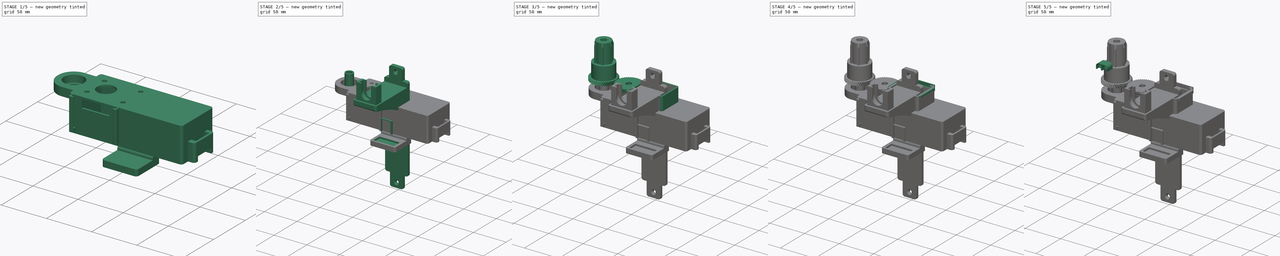
[diagram: build sequence overview — one tinted view per stage of 5, left to right]
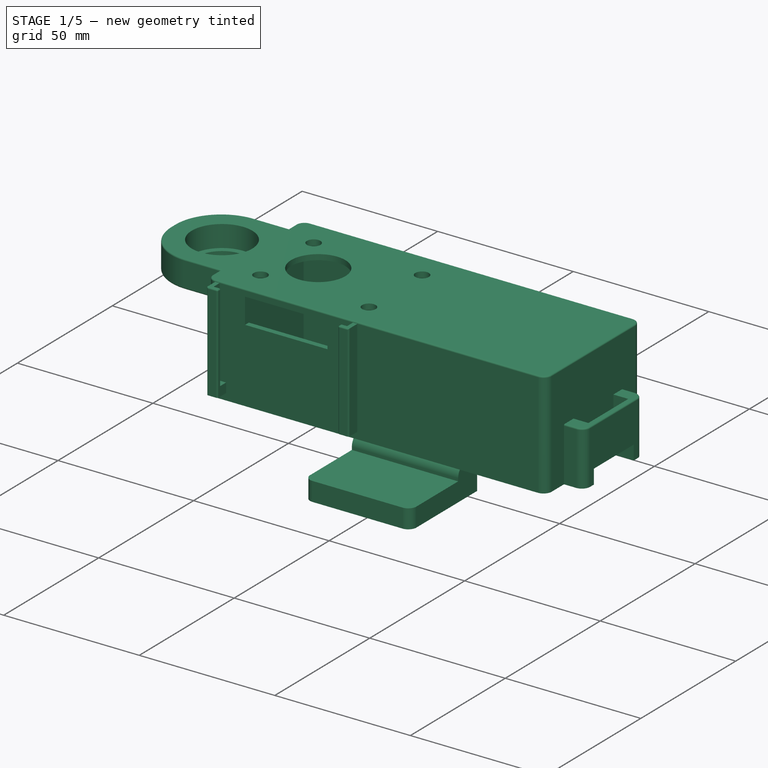
[diagram: stage 1 of 5 — iso view after this stage's code; geometry added in this stage tinted green]
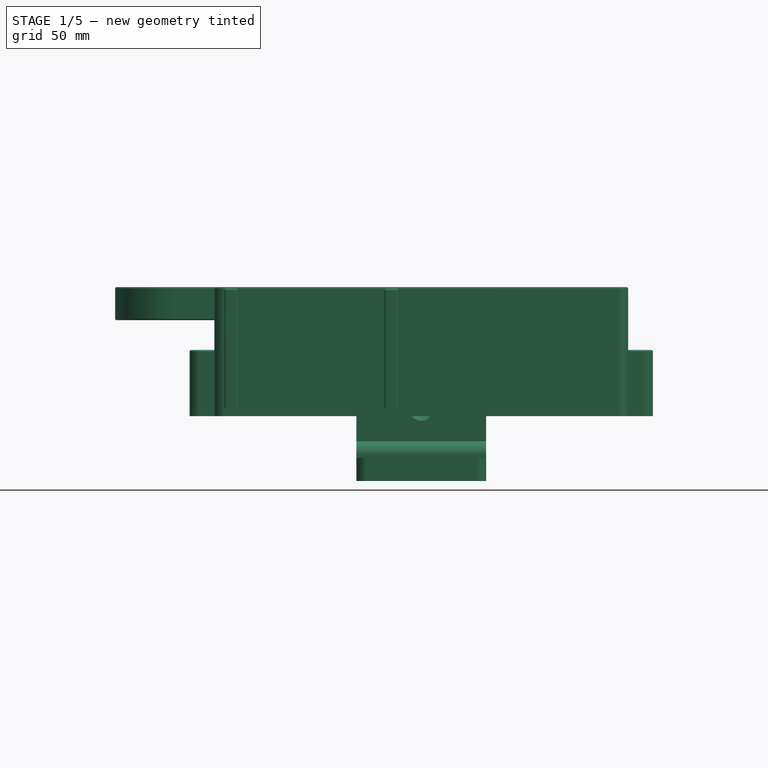
[diagram: stage 1 of 5 — front view after this stage's code; geometry added in this stage tinted green]
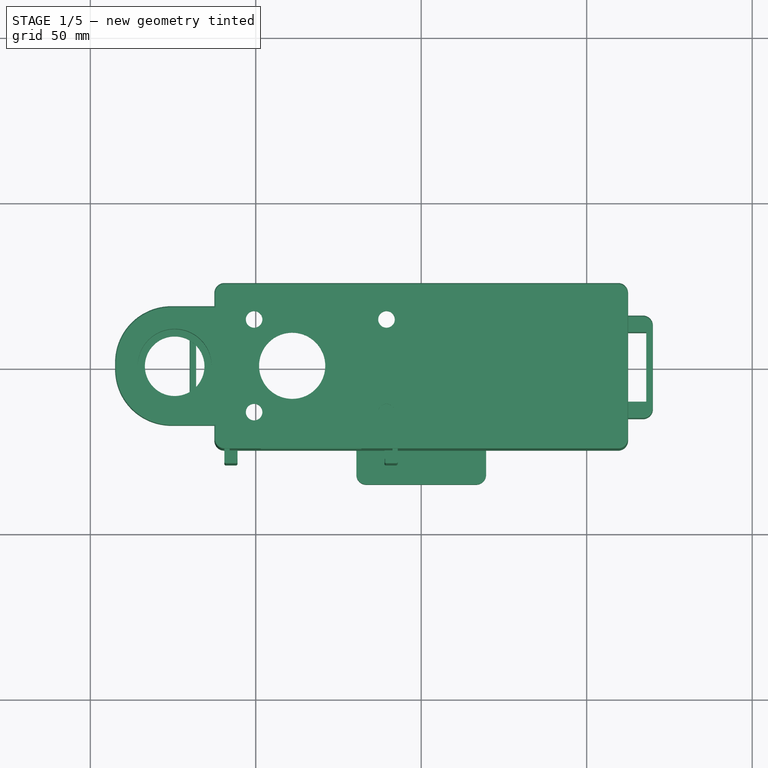
[diagram: stage 1 of 5 — top view after this stage's code; geometry added in this stage tinted green]
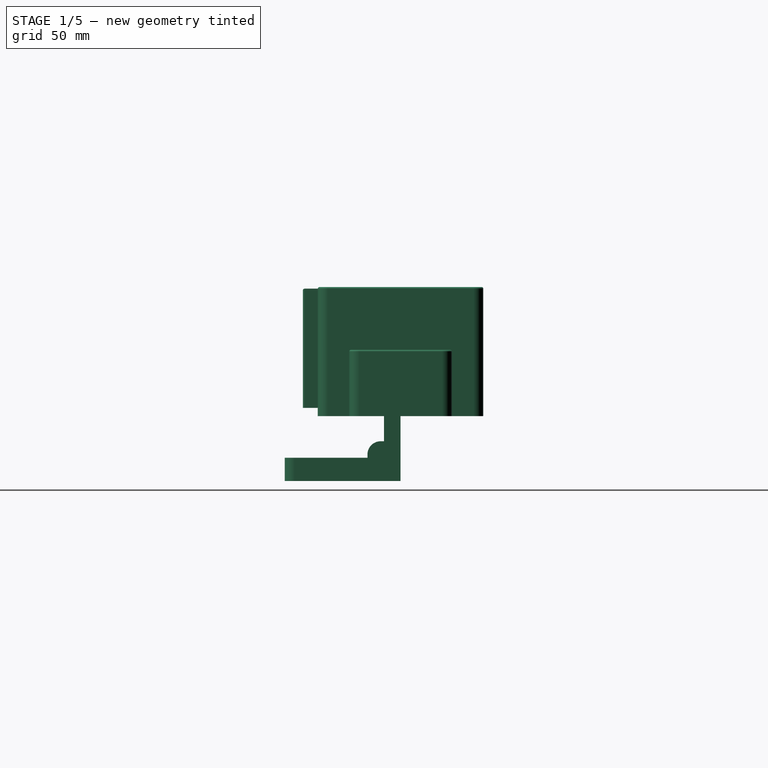
[diagram: stage 1 of 5 — right view after this stage's code; geometry added in this stage tinted green]
FCSTD DOCUMENT  (FreeCAD 0.20R24380 (Git))
Label: motor-box-17
License: All rights reserved
LicenseURL: http://en.wikipedia.org/wiki/All_rights_reserved
objects: Sketcher::SketchObject×90, PartDesign::Pad×49, PartDesign::Pocket×43, PartDesign::Fillet×25, PartDesign::Body×20, Part::Cylinder×18, Part::Cut×12, PartDesign::Chamfer×6, PartDesign::PolarPattern×6, Part::MultiFuse×5, PartDesign::Plane×5, Part::FeaturePython×3, Part::Part2DObjectPython×2, Part::Box×2, PartDesign::Mirrored×2, PartDesign::Thickness×1, Part::Mirroring×1, Part::Fuse×1, PartDesign::Line×1
note: 416 computed .brp shape members not serialized (recipe doc carries the construction recipe); baked Part::Feature solids carry a one-line shape summary decoded from their .brp

FEATURE [Sketcher::SketchObject] Sketch  label="Sketch001"
  FullyConstrained = false
  MapMode = 5
  Support = -> [XY_Plane]
  sketch-geometry (4):
    g0: LineSegment StartX=-62.5 StartY=25 StartZ=0 EndX=62.5 EndY=25 EndZ=0
    g1: LineSegment StartX=62.5 StartY=25 StartZ=0 EndX=62.5 EndY=-25 EndZ=0
    g2: LineSegment StartX=62.5 StartY=-25 StartZ=0 EndX=-62.5 EndY=-25 EndZ=0
    g3: LineSegment StartX=-62.5 StartY=-25 StartZ=0 EndX=-62.5 EndY=25 EndZ=0
  constraints (10):
    c: Coincident(g0,g1)
    c: Coincident(g1,g2)
    c: Coincident(g2,g3)
    c: Coincident(g3,g0)
    c: Horizontal(g2)
    c: Vertical(g3)
    c: DistanceX(g0,g0) = 125
    c: DistanceY(g1,g1) = 50
    c: Symmetric(g0,g0,g-2)
    c: Symmetric(g1,g0,g-1)
FEATURE [PartDesign::Pad] Pad  label="Base"
  AllowMultiFace = false
  Direction = (1,1,1)
  Length = 39
  Length2 = 100
  Profile = -> Sketch
  Type = 0
FEATURE [Sketcher::SketchObject] Sketch001  label="Sketch002"
  ExternalGeometry = -> [Pad]
  FullyConstrained = false
  MapMode = 5
  Placement = pos=(0,0,0) rot=(1,0,0;3.14159rad)
  Support = -> [Pad]
  sketch-geometry (4):
    g0: LineSegment StartX=-60.5 StartY=23 StartZ=0 EndX=60.5 EndY=23 EndZ=0
    g1: LineSegment StartX=60.5 StartY=23 StartZ=0 EndX=60.5 EndY=-23 EndZ=0
    g2: LineSegment StartX=60.5 StartY=-23 StartZ=0 EndX=-60.5 EndY=-23 EndZ=0
    g3: LineSegment StartX=-60.5 StartY=-23 StartZ=0 EndX=-60.5 EndY=23 EndZ=0
  constraints (10):
    c: Coincident(g0,g1)
    c: Coincident(g1,g2)
    c: Coincident(g2,g3)
    c: Coincident(g3,g0)
    c: Horizontal(g2)
    c: Vertical(g1)
    c: DistanceX(g-4,g0) = 2
    c: DistanceY(g0,g-4) = 2
    c: Symmetric(g2,g0,g-1)
    c: Symmetric(g0,g0,g-2)
FEATURE [PartDesign::Pocket] Pocket  label="Box"
  AllowMultiFace = false
  BaseFeature = -> Pad
  Length = 37
  Length2 = 100
  Profile = -> Sketch001
  Type = 0
FEATURE [Sketcher::SketchObject] Sketch002  label="Sketch003"
  FullyConstrained = false
  MapMode = 5
  Placement = pos=(62.5,0,0) rot=(0.57735,0.57735,0.57735;2.0944rad)
  Support = -> [Pocket]
  sketch-geometry (4):
    g0: LineSegment StartX=-15.5 StartY=20 StartZ=0 EndX=15.5 EndY=20 EndZ=0
    g1: LineSegment StartX=15.5 StartY=20 StartZ=0 EndX=15.5 EndY=0 EndZ=0
    g2: LineSegment StartX=15.5 StartY=0 StartZ=0 EndX=-15.5 EndY=0 EndZ=0
    g3: LineSegment StartX=-15.5 StartY=0 StartZ=0 EndX=-15.5 EndY=20 EndZ=0
  constraints (11):
    c: Coincident(g0,g1)
    c: Coincident(g1,g2)
    c: Coincident(g2,g3)
    c: Coincident(g3,g0)
    c: Horizontal(g2)
    c: Vertical(g1)
    c: Vertical(g3)
    c: DistanceX(g0,g0) = 31
    c: DistanceY(g1,g1) = 20
    c: PointOnObject(g1,g-1)
    c: Symmetric(g0,g0,g-2)
FEATURE [PartDesign::Pad] Pad001  label="Support-bottom"
  AllowMultiFace = false
  BaseFeature = -> Pocket
  Direction = (1,1,1)
  Length = 7.5
  Length2 = 100
  Profile = -> Sketch002
  Type = 0
FEATURE [Sketcher::SketchObject] Sketch004  label="Sketch005"
  ExternalGeometry = -> [Pad001]
  FullyConstrained = false
  MapMode = 5
  Placement = pos=(0,0,20) rot=(0,0,1;0rad)
  Support = -> [Pad001]
  sketch-geometry (4):
    g0: LineSegment StartX=62.5 StartY=10.5 StartZ=0 EndX=68 EndY=10.5 EndZ=0
    g1: LineSegment StartX=68 StartY=10.5 StartZ=0 EndX=68 EndY=-10.5 EndZ=0
    g2: LineSegment StartX=68 StartY=-10.5 StartZ=0 EndX=62.5 EndY=-10.5 EndZ=0
    g3: LineSegment StartX=62.5 StartY=-10.5 StartZ=0 EndX=62.5 EndY=10.5 EndZ=0
  constraints (11):
    c: Coincident(g0,g1)
    c: Coincident(g1,g2)
    c: Coincident(g2,g3)
    c: Coincident(g3,g0)
    c: Horizontal(g0)
    c: Horizontal(g2)
    c: Vertical(g3)
    c: DistanceY(g1,g1) = 21
    c: DistanceX(g2,g2) = 5.5
    c: Symmetric(g0,g1,g-1)
    c: PointOnObject(g2,g-3)
FEATURE [PartDesign::Pocket] Pocket001  label="Hole Support-bottom"
  AllowMultiFace = false
  BaseFeature = -> Pad001
  Length = 5
  Length2 = 100
  Profile = -> Sketch004
  Type = 1
FEATURE [Sketcher::SketchObject] Sketch005  label="Sketch006"
  FullyConstrained = false
  MapMode = 5
  Placement = pos=(-62.5,0,0) rot=(0.57735,-0.57735,-0.57735;2.0944rad)
  Support = -> [Pocket001]
  sketch-geometry (4):
    g0: LineSegment StartX=-15.5 StartY=20 StartZ=0 EndX=15.5 EndY=20 EndZ=0
    g1: LineSegment StartX=15.5 StartY=20 StartZ=0 EndX=15.5 EndY=0 EndZ=0
    g2: LineSegment StartX=15.5 StartY=0 StartZ=0 EndX=-15.5 EndY=0 EndZ=0
    g3: LineSegment StartX=-15.5 StartY=0 StartZ=0 EndX=-15.5 EndY=20 EndZ=0
  constraints (11):
    c: Coincident(g0,g1)
    c: Coincident(g1,g2)
    c: Coincident(g2,g3)
    c: Coincident(g3,g0)
    c: Horizontal(g0)
    c: Vertical(g1)
    c: Vertical(g3)
    c: DistanceX(g0,g0) = 31
    c: DistanceY(g1,g1) = 20
    c: Symmetric(g1,g2,g-2)
    c: PointOnObject(g1,g-1)
FEATURE [PartDesign::Pad] Pad002  label="Support-top"
  AllowMultiFace = false
  BaseFeature = -> Pocket001
  Direction = (1,1,1)
  Length = 7.5
  Length2 = 100
  Profile = -> Sketch005
  Type = 0
FEATURE [Sketcher::SketchObject] Sketch006  label="Sketch007"
  ExternalGeometry = -> [Pad002]
  FullyConstrained = false
  MapMode = 5
  Placement = pos=(0,0,20) rot=(0,0,1;0rad)
  Support = -> [Pad002]
  sketch-geometry (4):
    g0: LineSegment StartX=-68 StartY=10.5 StartZ=0 EndX=-62.5 EndY=10.5 EndZ=0
    g1: LineSegment StartX=-62.5 StartY=10.5 StartZ=0 EndX=-62.5 EndY=-10.5 EndZ=0
    g2: LineSegment StartX=-62.5 StartY=-10.5 StartZ=0 EndX=-68 EndY=-10.5 EndZ=0
    g3: LineSegment StartX=-68 StartY=-10.5 StartZ=0 EndX=-68 EndY=10.5 EndZ=0
  constraints (11):
    c: Coincident(g0,g1)
    c: Coincident(g1,g2)
    c: Coincident(g2,g3)
    c: Coincident(g3,g0)
    c: Horizontal(g0)
    c: Horizontal(g2)
    c: Vertical(g1)
    c: DistanceX(g2,g2) = 5.5
    c: DistanceY(g3,g3) = 21
    c: Symmetric(g2,g0,g-1)
    c: PointOnObject(g0,g-3)
FEATURE [PartDesign::Pocket] Pocket002  label="Hole Support-top"
  AllowMultiFace = false
  BaseFeature = -> Pad002
  Length = 5
  Length2 = 100
  Profile = -> Sketch006
  Type = 1
FEATURE [Sketcher::SketchObject] Sketch007  label="Sketch008"
  ExternalGeometry = -> [Pocket002]
  FullyConstrained = false
  MapMode = 5
  Placement = pos=(-62.5,0,0) rot=(0.57735,-0.57735,-0.57735;2.0944rad)
  Support = -> [Pocket002]
  sketch-geometry (4):
    g0: LineSegment StartX=-18 StartY=39 StartZ=0 EndX=18 EndY=39 EndZ=0
    g1: LineSegment StartX=18 StartY=39 StartZ=0 EndX=18 EndY=29 EndZ=0
    g2: LineSegment StartX=18 StartY=29 StartZ=0 EndX=-18 EndY=29 EndZ=0
    g3: LineSegment StartX=-18 StartY=29 StartZ=0 EndX=-18 EndY=39 EndZ=0
  constraints (11):
    c: Coincident(g0,g1)
    c: Coincident(g1,g2)
    c: Coincident(g2,g3)
    c: Coincident(g3,g0)
    c: Horizontal(g2)
    c: Vertical(g1)
    c: Vertical(g3)
    c: DistanceX(g2,g2) = 36
    c: DistanceY(g1,g1) = 10
    c: Symmetric(g0,g0,g-2)
    c: PointOnObject(g0,g-3)
FEATURE [PartDesign::Pad] Pad003  label="Ballbearings-holder"
  AllowMultiFace = false
  BaseFeature = -> Pocket002
  Direction = (1,1,1)
  Length = 30
  Length2 = 100
  Profile = -> Sketch007
  Type = 0
FEATURE [Sketcher::SketchObject] Sketch008  label="Sketch009"
  ExternalGeometry = -> [Pad003]
  FullyConstrained = false
  MapMode = 5
  Placement = pos=(0,0,29) rot=(1,0,0;3.14159rad)
  Support = -> [Pad003]
  sketch-geometry (1):
    g0: Circle CenterX=-74.5 CenterY=0 CenterZ=0 NormalX=0 NormalY=0 NormalZ=1 AngleXU=0 Radius=9
  constraints (3):
    c: PointOnObject(g0,g-1)
    c: Radius(g0) = 9
    c: DistanceX(g0,g-3) = 12
FEATURE [PartDesign::Pocket] Pocket003  label="Hole Ballbearings-holder"
  AllowMultiFace = false
  BaseFeature = -> Pad003
  Length = 5
  Length2 = 100
  Profile = -> Sketch008
  Type = 1
FEATURE [PartDesign::Fillet] Fillet  label="Fillet Ballbearings-holder"
  Base = -> Pocket003 [Edge54,Edge59]
  BaseFeature = -> Pocket003
  Radius = 17
  SupportTransform = false
FEATURE [PartDesign::Fillet] Fillet001  label="Fillet Box + Supports"
  Base = -> Fillet [Edge20,Edge59,Edge63,Edge24,Edge58,Edge49,Edge98,Edge92]
  BaseFeature = -> Fillet
  Radius = 3
  SupportTransform = false
FEATURE [Sketcher::SketchObject] Sketch009  label="Sketch010"
  ExternalGeometry = -> [Fillet001]
  FullyConstrained = false
  MapMode = 5
  Placement = pos=(0,0,39) rot=(0,0,1;0rad)
  Support = -> [Fillet001]
  sketch-geometry (5):
    g0: Circle CenterX=-50.5 CenterY=14 CenterZ=0 NormalX=0 NormalY=0 NormalZ=1 AngleXU=0 Radius=2.5
    g1: Circle CenterX=-50.5 CenterY=-14 CenterZ=0 NormalX=0 NormalY=0 NormalZ=1 AngleXU=0 Radius=2.5
    g2: Circle CenterX=-10.5 CenterY=14 CenterZ=0 NormalX=0 NormalY=0 NormalZ=1 AngleXU=0 Radius=2.5
    g3: Circle CenterX=-10.5 CenterY=-14 CenterZ=0 NormalX=0 NormalY=0 NormalZ=1 AngleXU=0 Radius=2.5
    g4: Circle CenterX=-39 CenterY=0 CenterZ=0 NormalX=0 NormalY=0 NormalZ=1 AngleXU=0 Radius=10
  constraints (14):
    c: PointOnObject(g4,g-1)
    c: Radius(g4) = 10
    c: Radius(g3) = 2.5
    c: Equal(g3,g2)
    c: Equal(g2,g0)
    c: Equal(g0,g1)
    c: Horizontal(g0,g2)
    c: Horizontal(g1,g3)
    c: Vertical(g0,g1)
    c: Symmetric(g3,g2,g-1)
    c: DistanceX(g1,g3) = 40
    c: DistanceY(g3,g2) = 28
    c: DistanceX(g0,g4) = 11.5
    c: DistanceX(g-3,g4) = 23.5
FEATURE [PartDesign::Pocket] Pocket004  label="Motor-holes"
  AllowMultiFace = false
  BaseFeature = -> Fillet001
  Length = 5
  Length2 = 100
  Profile = -> Sketch009
  Type = 1
FEATURE [PartDesign::Fillet] Fillet002  label="Fillet Ballbearings and Supports"
  Base = -> Pocket004 [Edge133,Edge131,Edge129,Edge128,Edge126,Edge55,Edge53,Edge51,Edge50,Edge35,Edge57,Edge108,Edge59,Edge62,Edge63,Edge107,Edge106,Edge65,Edge68,Edge64]
  BaseFeature = -> Pocket004
  Radius = 0.5
  SupportTransform = false
FEATURE [PartDesign::Fillet] Fillet003  label="Fillet Box"
  Base = -> Fillet002 [Edge57,Edge63,Edge62,Edge54,Edge61,Edge60,Edge59,Edge58]
  BaseFeature = -> Fillet002
  Radius = 0.5
  SupportTransform = false
FEATURE [Sketcher::SketchObject] Sketch010  label="Sketch011"
  FullyConstrained = false
  MapMode = 5
  Placement = pos=(70,0,0) rot=(0.57735,0.57735,0.57735;2.0944rad)
  Support = -> [Fillet003]
  sketch-geometry (4):
    g0: LineSegment StartX=-10.5 StartY=5.3 StartZ=0 EndX=10.5 EndY=5.3 EndZ=0
    g1: LineSegment StartX=10.5 StartY=5.3 StartZ=0 EndX=10.5 EndY=0 EndZ=0
    g2: LineSegment StartX=10.5 StartY=0 StartZ=0 EndX=-10.5 EndY=0 EndZ=0
    g3: LineSegment StartX=-10.5 StartY=0 StartZ=0 EndX=-10.5 EndY=5.3 EndZ=0
  constraints (11):
    c: Coincident(g0,g1)
    c: Coincident(g1,g2)
    c: Coincident(g2,g3)
    c: Coincident(g3,g0)
    c: Horizontal(g2)
    c: Vertical(g1)
    c: Vertical(g3)
    c: DistanceX(g0,g0) = 21
    c: DistanceY(g1,g0) = 5.3
    c: Symmetric(g0,g0,g-2)
    c: PointOnObject(g1,g-1)
FEATURE [PartDesign::Pocket] Pocket005  label="Opening Support-bottom"
  AllowMultiFace = false
  BaseFeature = -> Fillet003
  Length = 5
  Length2 = 100
  Profile = -> Sketch010
  Type = 0
FEATURE [Sketcher::SketchObject] Sketch011  label="Sketch012"
  FullyConstrained = false
  MapMode = 5
  Placement = pos=(-70,0,0) rot=(0.57735,-0.57735,-0.57735;2.0944rad)
  Support = -> [Pocket005]
  sketch-geometry (4):
    g0: LineSegment StartX=-10.5 StartY=5.3 StartZ=0 EndX=10.5 EndY=5.3 EndZ=0
    g1: LineSegment StartX=10.5 StartY=5.3 StartZ=0 EndX=10.5 EndY=0 EndZ=0
    g2: LineSegment StartX=10.5 StartY=0 StartZ=0 EndX=-10.5 EndY=0 EndZ=0
    g3: LineSegment StartX=-10.5 StartY=0 StartZ=0 EndX=-10.5 EndY=5.3 EndZ=0
  constraints (11):
    c: Coincident(g0,g1)
    c: Coincident(g1,g2)
    c: Coincident(g2,g3)
    c: Coincident(g3,g0)
    c: Horizontal(g2)
    c: Vertical(g1)
    c: Vertical(g3)
    c: DistanceX(g0,g0) = 21
    c: DistanceY(g3,g3) = 5.3
    c: Symmetric(g0,g0,g-2)
    c: PointOnObject(g1,g-1)
FEATURE [PartDesign::Pocket] Pocket006  label="Opening Support-top"
  AllowMultiFace = false
  BaseFeature = -> Pocket005
  Length = 5
  Length2 = 100
  Profile = -> Sketch011
  Type = 0
FEATURE [Sketcher::SketchObject] Sketch012  label="Sketch013"
  ExternalGeometry = -> [Pocket006]
  FullyConstrained = false
  MapMode = 5
  Placement = pos=(0,-25,0) rot=(1,0,0;1.5708rad)
  Support = -> [Pocket006]
  sketch-geometry (8):
    g0: LineSegment StartX=-59.5 StartY=38.5 StartZ=0 EndX=-55.5 EndY=38.5 EndZ=0
    g1: LineSegment StartX=-55.5 StartY=38.5 StartZ=0 EndX=-55.5 EndY=2.5 EndZ=0
    g2: LineSegment StartX=-55.5 StartY=2.5 StartZ=0 EndX=-59.5 EndY=2.5 EndZ=0
    g3: LineSegment StartX=-59.5 StartY=2.5 StartZ=0 EndX=-59.5 EndY=38.5 EndZ=0
    g4: LineSegment StartX=-11.1 StartY=38.5 StartZ=0 EndX=-7.1 EndY=38.5 EndZ=0
    g5: LineSegment StartX=-7.1 StartY=38.5 StartZ=0 EndX=-7.1 EndY=2.5 EndZ=0
    g6: LineSegment StartX=-7.1 StartY=2.5 StartZ=0 EndX=-11.1 EndY=2.5 EndZ=0
    g7: LineSegment StartX=-11.1 StartY=2.5 StartZ=0 EndX=-11.1 EndY=38.5 EndZ=0
  constraints (23):
    c: Coincident(g0,g1)
    c: Coincident(g1,g2)
    c: Coincident(g2,g3)
    c: Coincident(g3,g0)
    c: Horizontal(g0)
    c: Horizontal(g2)
    c: Vertical(g1)
    c: Vertical(g3)
    c: Coincident(g4,g5)
    c: Coincident(g5,g6)
    c: Coincident(g6,g7)
    c: Coincident(g7,g4)
    c: Horizontal(g4)
    c: Horizontal(g6)
    c: Vertical(g5)
    c: Vertical(g7)
    c: Equal(g0,g4)
    c: Equal(g1,g5)
    c: Coincident(g0,g-3)
    c: DistanceY(g1,g1) = 36
    c: DistanceX(g0,g4) = 44.4
    c: Horizontal(g0,g4)
    c: DistanceX(g6,g6) = 4
FEATURE [PartDesign::Pad] Pad004  label="Brackets-driver-box"
  AllowMultiFace = false
  BaseFeature = -> Pocket006
  Direction = (1,1,1)
  Length = 4.5
  Length2 = 100
  Profile = -> Sketch012
  Type = 0
FEATURE [Sketcher::SketchObject] Sketch013  label="Sketch014"
  ExternalGeometry = -> [Pad004]
  FullyConstrained = false
  MapMode = 5
  Placement = pos=(-55.5,0,0) rot=(0.57735,0.57735,0.57735;2.0944rad)
  Support = -> [Pad004]
  sketch-geometry (4):
    g0: LineSegment StartX=-28.1 StartY=38.5 StartZ=0 EndX=-25 EndY=38.5 EndZ=0
    g1: LineSegment StartX=-25 StartY=38.5 StartZ=0 EndX=-25 EndY=6 EndZ=0
    g2: LineSegment StartX=-25 StartY=6 StartZ=0 EndX=-28.1 EndY=6 EndZ=0
    g3: LineSegment StartX=-28.1 StartY=6 StartZ=0 EndX=-28.1 EndY=38.5 EndZ=0
  constraints (11):
    c: Coincident(g0,g1)
    c: Coincident(g1,g2)
    c: Coincident(g2,g3)
    c: Coincident(g3,g0)
    c: Horizontal(g0)
    c: Horizontal(g2)
    c: Vertical(g3)
    c: Vertical(g1)
    c: DistanceY(g3,g3) = 32.5
    c: Coincident(g0,g-3)
    c: DistanceX(g2,g2) = 3.1
FEATURE [PartDesign::Pocket] Pocket007  label="Opening driver-box-left"
  AllowMultiFace = false
  BaseFeature = -> Pad004
  Length = 2.4
  Length2 = 100
  Profile = -> Sketch013
  Type = 0
FEATURE [Sketcher::SketchObject] Sketch014  label="Sketch015"
  ExternalGeometry = -> [Pocket007]
  FullyConstrained = false
  MapMode = 5
  Placement = pos=(-11.1,0,0) rot=(0.57735,-0.57735,-0.57735;2.0944rad)
  Support = -> [Pocket007]
  sketch-geometry (4):
    g0: LineSegment StartX=25 StartY=38.5 StartZ=0 EndX=28.1 EndY=38.5 EndZ=0
    g1: LineSegment StartX=28.1 StartY=38.5 StartZ=0 EndX=28.1 EndY=6 EndZ=0
    g2: LineSegment StartX=28.1 StartY=6 StartZ=0 EndX=25 EndY=6 EndZ=0
    g3: LineSegment StartX=25 StartY=6 StartZ=0 EndX=25 EndY=38.5 EndZ=0
  constraints (11):
    c: Coincident(g0,g1)
    c: Coincident(g1,g2)
    c: Coincident(g2,g3)
    c: Coincident(g3,g0)
    c: Horizontal(g0)
    c: Horizontal(g2)
    c: Vertical(g1)
    c: Vertical(g3)
    c: Coincident(g0,g-3)
    c: DistanceY(g1,g1) = 32.5
    c: DistanceX(g2,g2) = 3.1
FEATURE [PartDesign::Pocket] Pocket008  label="Opening driver-box-right"
  AllowMultiFace = false
  BaseFeature = -> Pocket007
  Length = 2.4
  Length2 = 100
  Profile = -> Sketch014
  Type = 0
FEATURE [PartDesign::Fillet] Fillet004  label="Filet Bracket-left"
  Base = -> Pocket008 [Edge215,Edge197,Edge196,Edge92]
  BaseFeature = -> Pocket008
  Radius = 0.5
  SupportTransform = false
FEATURE [PartDesign::Fillet] Fillet005  label="Filet Bracket-right"
  Base = -> Fillet004 [Edge202,Edge92,Edge93,Edge100]
  BaseFeature = -> Fillet004
  Radius = 0.5
  SupportTransform = false
FEATURE [Sketcher::SketchObject] Sketch042  label="Sketch043"
  ExternalGeometry = -> [Fillet005]
  FullyConstrained = false
  MapMode = 5
  Placement = pos=(0,-25,0) rot=(1,0,0;1.5708rad)
  Support = -> [Fillet005]
  sketch-geometry (6):
    g0: LineSegment StartX=-48.5 StartY=36.5 StartZ=0 EndX=-18.1 EndY=36.5 EndZ=0
    g1: LineSegment StartX=-18.1 StartY=36.5 StartZ=0 EndX=-18.1 EndY=27.1 EndZ=0
    g2: LineSegment StartX=-18.1 StartY=27.1 StartZ=0 EndX=-48.5 EndY=27.1 EndZ=0
    g3: LineSegment StartX=-48.5 StartY=27.1 StartZ=0 EndX=-48.5 EndY=36.5 EndZ=0
    g4: LineSegment StartX=-33.3 StartY=38.5 StartZ=0 EndX=-33.3 EndY=11.2998 EndZ=0
    g5: GeomPoint X=-33.3 Y=36.5 Z=0
  constraints (15):
    c: Coincident(g0,g1)
    c: Coincident(g1,g2)
    c: Coincident(g2,g3)
    c: Coincident(g3,g0)
    c: Horizontal(g0)
    c: Horizontal(g2)
    c: Vertical(g1)
    c: Vertical(g3)
    c: DistanceX(g2,g2) = 30.4
    c: DistanceY(g1,g1) = 9.4
    c: Symmetric(g-3,g-3,g4)
    c: Symmetric(g0,g0,g4)
    c: PointOnObject(g5,g0)
    c: PointOnObject(g5,g4)
    c: DistanceY(g5,g4) = 2
FEATURE [PartDesign::Pocket] Pocket026
  AllowMultiFace = false
  BaseFeature = -> Fillet005
  Length = 2
  Length2 = 100
  Profile = -> Sketch042
  Type = 0
FEATURE [Sketcher::SketchObject] Sketch079  label="Sketch080"
  ExternalGeometry = -> [Pocket026]
  FullyConstrained = false
  MapMode = 5
  Placement = pos=(0,0,39) rot=(0,0,1;0rad)
  Support = -> [Pocket026]
  sketch-geometry (1):
    g0: Circle CenterX=-74.5 CenterY=0 CenterZ=0 NormalX=0 NormalY=0 NormalZ=1 AngleXU=0 Radius=11.16
  constraints (3):
    c: PointOnObject(g0,g-1)
    c: Radius(g0) = 11.16
    c: DistanceX(g0,g-3) = 12
FEATURE [PartDesign::Pocket] Pocket047
  AllowMultiFace = false
  BaseFeature = -> Pocket026
  Length = 8
  Length2 = 100
  Profile = -> Sketch079
  Type = 0
FEATURE [PartDesign::Body] Body031  label="side-support"
  Group = -> [Sketch176,Pad095,DatumPlane,DatumPlane001,DatumPlane002,Sketch177,Pad096,DatumPlane003,Sketch178,Pocket082,Sketch179,Pad097,Sketch180,Pad098,Sketch181,Pad099,Sketch182,Pocket083,Sketch183,Pocket084,DatumPlane004,Sketch184,Pocket085,Fillet042,Fillet043,Chamfer004]
  Origin = -> Origin033
  Tip = -> Chamfer004
FEATURE [Sketcher::SketchObject] Sketch188  label="Sketch189"
  FullyConstrained = false
  MapMode = 5
  Placement = pos=(0,0,0) rot=(1,0,0;1.5708rad)
  Support = -> [XZ_Plane036]
  sketch-geometry (4):
    g0: LineSegment StartX=-19.6 StartY=19.6 StartZ=0 EndX=19.6 EndY=19.6 EndZ=0
    g1: LineSegment StartX=19.6 StartY=19.6 StartZ=0 EndX=19.6 EndY=-19.6 EndZ=0
    g2: LineSegment StartX=19.6 StartY=-19.6 StartZ=0 EndX=-19.6 EndY=-19.6 EndZ=0
    g3: LineSegment StartX=-19.6 StartY=-19.6 StartZ=0 EndX=-19.6 EndY=19.6 EndZ=0
  constraints (11):
    c: Coincident(g0,g1)
    c: Coincident(g1,g2)
    c: Coincident(g2,g3)
    c: Coincident(g3,g0)
    c: Horizontal(g0)
    c: Horizontal(g2)
    c: Vertical(g1)
    c: Vertical(g3)
    c: Symmetric(g1,g0,g-1)
    c: Equal(g0,g1)
    c: DistanceX(g0,g0) = 39.2
FEATURE [PartDesign::Pad] Pad102
  Direction = (1,1,1)
  Length = 5
  Length2 = 100
  Placement = pos=(0,0,0) rot=(1,0,0;1.5708rad)
  Profile = -> Sketch188
  Type = 0
FEATURE [Sketcher::SketchObject] Sketch189  label="Sketch190"
  ExternalGeometry = -> [Pad102]
  FullyConstrained = false
  MapMode = 5
  Placement = pos=(0,-5,1.1e-15) rot=(1,0,0;1.5708rad)
  Support = -> [Pad102]
  sketch-geometry (1):
    g0: Circle CenterX=0 CenterY=2.3 CenterZ=0 NormalX=0 NormalY=0 NormalZ=1 AngleXU=0 Radius=2.2
  constraints (3):
    c: Radius(g0) = 2.2
    c: PointOnObject(g0,g-2)
    c: DistanceY(g0,g-3) = 17.3
FEATURE [PartDesign::Pocket] Pocket087
  BaseFeature = -> Pad102
  Length = 5
  Length2 = 100
  Placement = pos=(0,0,0) rot=(1,0,0;1.5708rad)
  Profile = -> Sketch189
  Type = 1
FEATURE [Sketcher::SketchObject] Sketch190  label="Sketch191"
  ExternalGeometry = -> [Pocket087]
  FullyConstrained = false
  MapMode = 5
  Placement = pos=(0,-5,1.1e-15) rot=(1,0,0;1.5708rad)
  Support = -> [Pocket087]
  sketch-geometry (4):
    g0: LineSegment StartX=19.6 StartY=-19.6 StartZ=0 EndX=-19.6 EndY=-19.6 EndZ=0
    g1: LineSegment StartX=-19.6 StartY=-19.6 StartZ=0 EndX=-19.6 EndY=-12.6 EndZ=0
    g2: LineSegment StartX=-19.6 StartY=-12.6 StartZ=0 EndX=19.6 EndY=-12.6 EndZ=0
    g3: LineSegment StartX=19.6 StartY=-12.6 StartZ=0 EndX=19.6 EndY=-19.6 EndZ=0
  constraints (10):
    c: Coincident(g0,g1)
    c: Coincident(g1,g2)
    c: Coincident(g2,g3)
    c: Coincident(g3,g0)
    c: Horizontal(g2)
    c: Vertical(g1)
    c: Vertical(g3)
    c: Coincident(g0,g-3)
    c: Coincident(g0,g-3)
    c: DistanceY(g1,g1) = 7
FEATURE [PartDesign::Pad] Pad103
  BaseFeature = -> Pocket087
  Direction = (1,1,1)
  Length = 30
  Length2 = 100
  Placement = pos=(0,0,0) rot=(1,0,0;1.5708rad)
  Profile = -> Sketch190
  Type = 0
FEATURE [Sketcher::SketchObject] Sketch191  label="Sketch192"
  ExternalGeometry = -> [Pad103]
  FullyConstrained = false
  MapMode = 5
  Placement = pos=(0,-1.68e-14,-12.6) rot=(0,0,1;3.14159rad)
  Support = -> [Pad103]
  sketch-geometry (4):
    g0: LineSegment StartX=-19.6 StartY=5 StartZ=0 EndX=19.6 EndY=5 EndZ=0
    g1: LineSegment StartX=19.6 StartY=5 StartZ=0 EndX=19.6 EndY=10 EndZ=0
    g2: LineSegment StartX=19.6 StartY=10 StartZ=0 EndX=-19.6 EndY=10 EndZ=0
    g3: LineSegment StartX=-19.6 StartY=10 StartZ=0 EndX=-19.6 EndY=5 EndZ=0
  constraints (10):
    c: Coincident(g0,g1)
    c: Coincident(g1,g2)
    c: Coincident(g2,g3)
    c: Coincident(g3,g0)
    c: Horizontal(g2)
    c: Vertical(g1)
    c: Vertical(g3)
    c: Coincident(g0,g-3)
    c: Coincident(g0,g-3)
    c: DistanceY(g1,g1) = 5
FEATURE [PartDesign::Pad] Pad104
  BaseFeature = -> Pad103
  Direction = (1,1,1)
  Length = 5
  Length2 = 100
  Placement = pos=(0,0,0) rot=(1,0,0;1.5708rad)
  Profile = -> Sketch191
  Type = 0
FEATURE [PartDesign::Chamfer] Chamfer005
  Angle = 45
  Base = -> Pad104 [Edge18]
  BaseFeature = -> Pad104
  ChamferType = 0
  FlipDirection = false
  Placement = pos=(0,0,0) rot=(1,0,0;1.5708rad)
  Size = 1.5
  Size2 = 1
  SupportTransform = false
FEATURE [PartDesign::Fillet] Fillet044
  Base = -> Chamfer005 [Edge16,Edge11]
  BaseFeature = -> Chamfer005
  Placement = pos=(0,0,0) rot=(1,0,0;1.5708rad)
  Radius = 7
  SupportTransform = false
FEATURE [PartDesign::Fillet] Fillet045
  Base = -> Fillet044 [Edge16]
  BaseFeature = -> Fillet044
  Placement = pos=(0,0,0) rot=(1,0,0;1.5708rad)
  Radius = 4
  SupportTransform = false
FEATURE [PartDesign::Fillet] Fillet046
  Base = -> Fillet045 [Edge24,Edge41]
  BaseFeature = -> Fillet045
  Placement = pos=(0,0,0) rot=(1,0,0;1.5708rad)
  Radius = 3
  SupportTransform = false
FEATURE [PartDesign::Body] Body034  label="small-side-support"
  Group = -> [Sketch188,Pad102,Sketch189,Pocket087,Sketch190,Pad103,Sketch191,Pad104,Chamfer005,Fillet044,Fillet045,Fillet046,Sketch192,Pocket088]
  Origin = -> Origin036
  Tip = -> Pocket088
FEATURE [PartDesign::Line] DatumLine
  AttacherType = Attacher::AttachEngineLine
  Length = 200
  MapMode = 19
  Placement = pos=(-39,0,39) rot=(0,0,1;0rad)
  ResizeMode = 1
  Support = -> [Pocket047]
FEATURE [PartDesign::Body] Body  label="motor-box"
  Group = -> [Sketch,Pad,Sketch001,Pocket,Sketch002,Pad001,Sketch004,Pocket001,Sketch005,Pad002,Sketch006,Pocket002,Sketch007,Pad003,Sketch008,Pocket003,Fillet,Fillet001,Sketch009,Pocket004,Fillet002,Fillet003,Sketch010,Pocket005,Sketch011,Pocket006,Sketch012,Pad004,Sketch013,Pocket007,Sketch014,Pocket008,Fillet004,Fillet005,Sketch042,Pocket026,Sketch079,Pocket047,DatumLine]
  Origin = -> Origin
  Tip = -> Pocket047
FEATURE [Sketcher::SketchObject] Sketch193  label="Sketch194"
  FullyConstrained = true
  MapMode = 5
  Support = -> [XY_Plane037]
  sketch-geometry (4):
    g0: LineSegment StartX=-10 StartY=10 StartZ=0 EndX=10 EndY=10 EndZ=0
    g1: LineSegment StartX=10 StartY=10 StartZ=0 EndX=10 EndY=-10 EndZ=0
    g2: LineSegment StartX=10 StartY=-10 StartZ=0 EndX=-10 EndY=-10 EndZ=0
    g3: LineSegment StartX=-10 StartY=-10 StartZ=0 EndX=-10 EndY=10 EndZ=0
  constraints (11):
    c: Coincident(g0,g1)
    c: Coincident(g1,g2)
    c: Coincident(g2,g3)
    c: Coincident(g3,g0)
    c: Horizontal(g0)
    c: Horizontal(g2)
    c: Vertical(g1)
    c: Vertical(g3)
    c: Symmetric(g1,g0,g-1)
    c: DistanceY(g1,g1) = 20
    c: DistanceX(g0,g0) = 20
FEATURE [PartDesign::Pad] Pad105
  AllowMultiFace = false
  Direction = (1,1,1)
  Length = 5
  Length2 = 100
  Profile = -> Sketch193
  Type = 0
FEATURE [Sketcher::SketchObject] Sketch194  label="Sketch195"
  ExternalGeometry = -> [Pad105]
  FullyConstrained = true
  MapMode = 5
  Placement = pos=(0,0,5) rot=(0,0,1;0rad)
  Support = -> [Pad105]
  sketch-geometry (4):
    g0: LineSegment StartX=-10 StartY=10 StartZ=0 EndX=10 EndY=10 EndZ=0
    g1: LineSegment StartX=10 StartY=10 StartZ=0 EndX=10 EndY=5 EndZ=0
    g2: LineSegment StartX=10 StartY=5 StartZ=0 EndX=-10 EndY=5 EndZ=0
    g3: LineSegment StartX=-10 StartY=5 StartZ=0 EndX=-10 EndY=10 EndZ=0
  constraints (10):
    c: Coincident(g0,g1)
    c: Coincident(g1,g2)
    c: Coincident(g2,g3)
    c: Coincident(g3,g0)
    c: Horizontal(g2)
    c: Vertical(g1)
    c: Vertical(g3)
    c: Coincident(g0,g-3)
    c: Coincident(g0,g-3)
    c: DistanceY(g3,g3) = 5
FEATURE [PartDesign::Pad] Pad106
  AllowMultiFace = false
  BaseFeature = -> Pad105
  Direction = (1,1,1)
  Length = 25
  Length2 = 100
  Profile = -> Sketch194
  Type = 0
FEATURE [Sketcher::SketchObject] Sketch195  label="Sketch196"
  ExternalGeometry = -> [Pad106]
  FullyConstrained = true
  MapMode = 5
  Placement = pos=(0,5,0) rot=(1,0,0;1.5708rad)
  Support = -> [Pad106]
  sketch-geometry (1):
    g0: Circle CenterX=0 CenterY=21.5 CenterZ=0 NormalX=0 NormalY=0 NormalZ=1 AngleXU=0 Radius=2.5
  constraints (3):
    c: PointOnObject(g0,g-2)
    c: Radius(g0) = 2.5
    c: Distance(g0,g-3) = 8.5
FEATURE [PartDesign::Pocket] Pocket089
  AllowMultiFace = false
  BaseFeature = -> Pad106
  Length = 5
  Length2 = 100
  Profile = -> Sketch195
  Type = 0
FEATURE [PartDesign::Chamfer] Chamfer006
  Angle = 45
  Base = -> Pocket089 [Edge26]
  BaseFeature = -> Pocket089
  ChamferType = 0
  FlipDirection = false
  Size = 2
  Size2 = 1
  SupportTransform = false
FEATURE [PartDesign::Fillet] Fillet047
  Base = -> Chamfer006 [Edge19,Edge15]
  BaseFeature = -> Chamfer006
  Radius = 4
  SupportTransform = false
FEATURE [PartDesign::Body] Body035  label="hook-long"
  Group = -> [Sketch193,Pad105,Sketch194,Pad106,Sketch195,Pocket089,Chamfer006,Fillet047]
  Origin = -> Origin037
  Placement = pos=(-63,-8e-15,10) rot=(0.57735,0.57735,-0.57735;4.18879rad)
  Tip = -> Fillet047
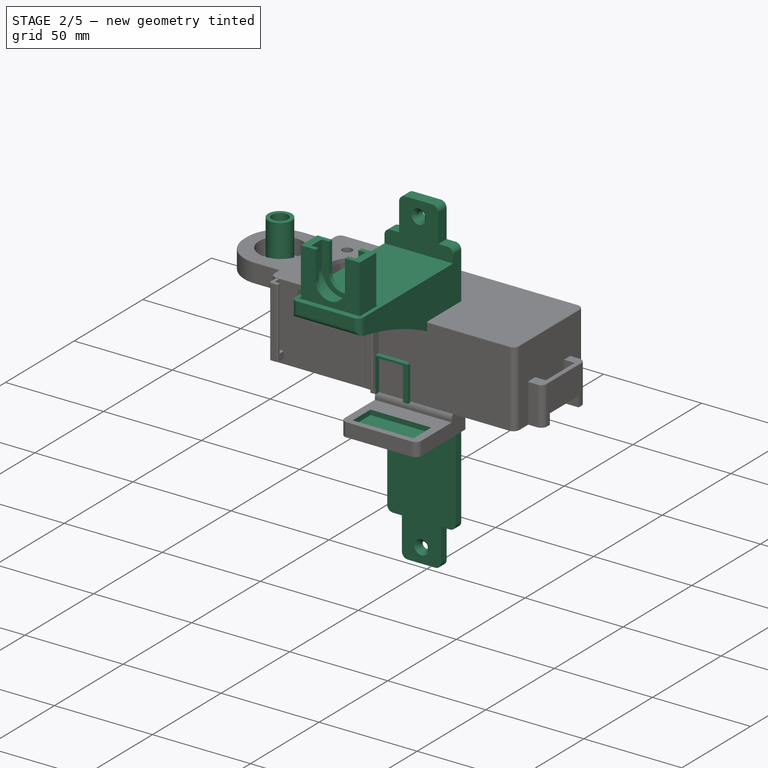
[diagram: stage 2 of 5 — iso view after this stage's code; geometry added in this stage tinted green]
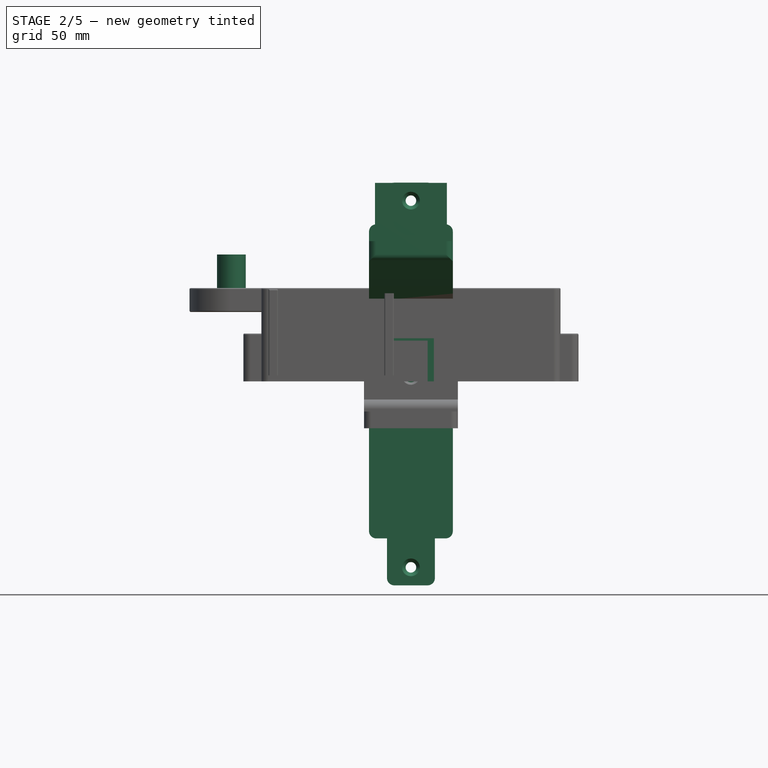
[diagram: stage 2 of 5 — front view after this stage's code; geometry added in this stage tinted green]
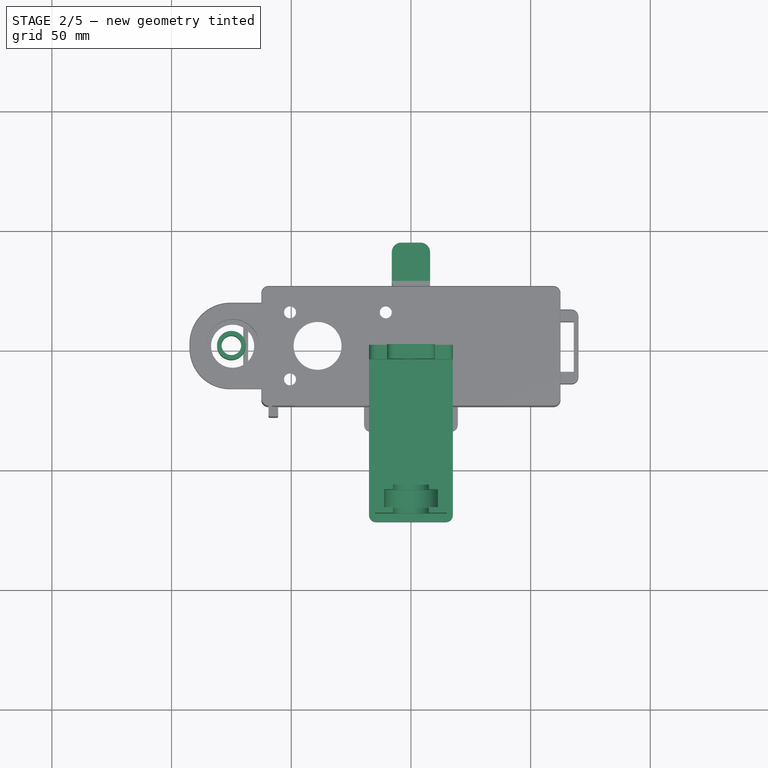
[diagram: stage 2 of 5 — top view after this stage's code; geometry added in this stage tinted green]
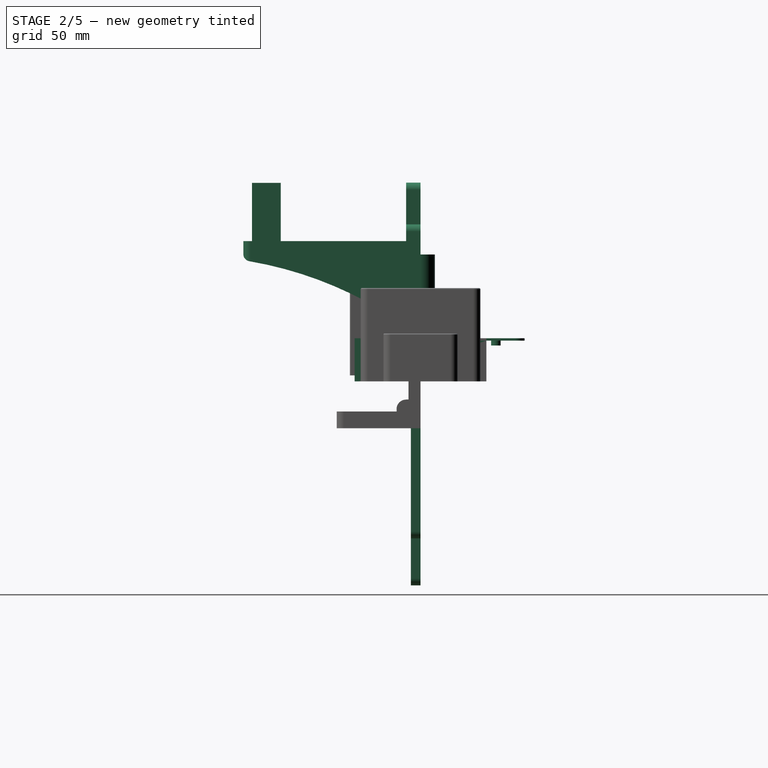
[diagram: stage 2 of 5 — right view after this stage's code; geometry added in this stage tinted green]
FEATURE [Part::Cylinder] Cylinder018
  Angle = 360
  AttacherType = Attacher::AttachEngine3D
  Height = 1
  Radius = 4.1
FEATURE [Part::Cylinder] Cylinder019
  Angle = 360
  AttacherType = Attacher::AttachEngine3D
  Height = 2
  Radius = 6
FEATURE [Part::Cylinder] Cylinder020
  Angle = 360
  AttacherType = Attacher::AttachEngine3D
  Height = 2
  Radius = 4.1
FEATURE [Part::Cut] Cut014  label="spacer-2mm"
  Base = -> Cylinder019
  Placement = pos=(-75,0,38) rot=(0,0,1;0rad)
  Tool = -> Cylinder020
FEATURE [Part::Cylinder] Cylinder021
  Angle = 360
  AttacherType = Attacher::AttachEngine3D
  Height = 19
  Radius = 6
FEATURE [Part::Cylinder] Cylinder022
  Angle = 360
  AttacherType = Attacher::AttachEngine3D
  Height = 19
  Radius = 4.1
FEATURE [Part::Cut] Cut015  label="spacer-4mm"
  Base = -> Cylinder021
  Placement = pos=(-75,0,34) rot=(0,0,1;0rad)
  Tool = -> Cylinder022
FEATURE [Sketcher::SketchObject] Sketch165  label="Sketch166"
  FullyConstrained = false
  MapMode = 5
  Support = -> [XY_Plane031]
  sketch-geometry (4):
    g0: LineSegment StartX=-8 StartY=27.5 StartZ=0 EndX=8 EndY=27.5 EndZ=0
    g1: LineSegment StartX=8 StartY=27.5 StartZ=0 EndX=8 EndY=-27.5 EndZ=0
    g2: LineSegment StartX=8 StartY=-27.5 StartZ=0 EndX=-8 EndY=-27.5 EndZ=0
    g3: LineSegment StartX=-8 StartY=-27.5 StartZ=0 EndX=-8 EndY=27.5 EndZ=0
  constraints (11):
    c: Coincident(g0,g1)
    c: Coincident(g1,g2)
    c: Coincident(g2,g3)
    c: Coincident(g3,g0)
    c: Horizontal(g0)
    c: Horizontal(g2)
    c: Vertical(g1)
    c: Vertical(g3)
    c: Symmetric(g1,g0,g-1)
    c: DistanceY(g1,g1) = 55
    c: DistanceX(g2,g2) = 16
FEATURE [PartDesign::Pad] Pad088
  AllowMultiFace = false
  Direction = (1,1,1)
  Length = 18
  Length2 = 100
  Profile = -> Sketch165
  Type = 0
FEATURE [Sketcher::SketchObject] Sketch166  label="Sketch167"
  ExternalGeometry = -> [Pad088]
  FullyConstrained = false
  MapMode = 5
  Placement = pos=(0,27.5,0) rot=(0,0.707107,0.707107;3.14159rad)
  Support = -> [Pad088]
  sketch-geometry (4):
    g0: LineSegment StartX=7 StartY=0 StartZ=0 EndX=-7 EndY=0 EndZ=0
    g1: LineSegment StartX=-7 StartY=0 StartZ=0 EndX=-7 EndY=17 EndZ=0
    g2: LineSegment StartX=-7 StartY=17 StartZ=0 EndX=7 EndY=17 EndZ=0
    g3: LineSegment StartX=7 StartY=17 StartZ=0 EndX=7 EndY=0 EndZ=0
  constraints (11):
    c: Coincident(g0,g1)
    c: Coincident(g1,g2)
    c: Coincident(g2,g3)
    c: Coincident(g3,g0)
    c: Horizontal(g2)
    c: Vertical(g1)
    c: Vertical(g3)
    c: PointOnObject(g0,g-3)
    c: DistanceX(g2,g-4) = 1
    c: DistanceY(g1,g-4) = 1
    c: Symmetric(g0,g0,g-2)
FEATURE [PartDesign::Pocket] Pocket080
  AllowMultiFace = false
  BaseFeature = -> Pad088
  Length = 5
  Length2 = 100
  Profile = -> Sketch166
  Type = 1
FEATURE [Sketcher::SketchObject] Sketch167  label="Sketch168"
  ExternalGeometry = -> [Pocket080]
  FullyConstrained = false
  MapMode = 5
  Placement = pos=(-8,0,0) rot=(0.57735,-0.57735,-0.57735;2.0944rad)
  Support = -> [Pocket080]
  sketch-geometry (4):
    g0: LineSegment StartX=27.5 StartY=18 StartZ=0 EndX=25.9 EndY=18 EndZ=0
    g1: LineSegment StartX=25.9 StartY=18 StartZ=0 EndX=25.9 EndY=0 EndZ=0
    g2: LineSegment StartX=25.9 StartY=0 StartZ=0 EndX=27.5 EndY=0 EndZ=0
    g3: LineSegment StartX=27.5 StartY=0 StartZ=0 EndX=27.5 EndY=18 EndZ=0
  constraints (10):
    c: Coincident(g0,g1)
    c: Coincident(g1,g2)
    c: Coincident(g2,g3)
    c: Coincident(g3,g0)
    c: Horizontal(g0)
    c: Horizontal(g2)
    c: Vertical(g1)
    c: Coincident(g0,g-3)
    c: Coincident(g2,g-3)
    c: DistanceX(g2,g2) = 1.6
FEATURE [PartDesign::Pad] Pad089
  AllowMultiFace = false
  BaseFeature = -> Pocket080
  Direction = (1,1,1)
  Length = 1.6
  Length2 = 100
  Profile = -> Sketch167
  Type = 0
FEATURE [Sketcher::SketchObject] Sketch168  label="Sketch169"
  ExternalGeometry = -> [Pad089]
  FullyConstrained = false
  MapMode = 5
  Placement = pos=(8,0,0) rot=(0.57735,0.57735,0.57735;2.0944rad)
  Support = -> [Pad089]
  sketch-geometry (4):
    g0: LineSegment StartX=-27.5 StartY=18 StartZ=0 EndX=-25.9 EndY=18 EndZ=0
    g1: LineSegment StartX=-25.9 StartY=18 StartZ=0 EndX=-25.9 EndY=0 EndZ=0
    g2: LineSegment StartX=-25.9 StartY=0 StartZ=0 EndX=-27.5 EndY=0 EndZ=0
    g3: LineSegment StartX=-27.5 StartY=0 StartZ=0 EndX=-27.5 EndY=18 EndZ=0
  constraints (10):
    c: Coincident(g0,g1)
    c: Coincident(g1,g2)
    c: Coincident(g2,g3)
    c: Coincident(g3,g0)
    c: Horizontal(g0)
    c: Horizontal(g2)
    c: Vertical(g1)
    c: Coincident(g0,g-3)
    c: Coincident(g2,g-3)
    c: DistanceX(g2,g2) = 1.6
FEATURE [PartDesign::Pad] Pad090
  AllowMultiFace = false
  BaseFeature = -> Pad089
  Direction = (1,1,1)
  Length = 1.6
  Length2 = 100
  Profile = -> Sketch168
  Type = 0
FEATURE [Sketcher::SketchObject] Sketch169  label="Sketch170"
  ExternalGeometry = -> [Pad090]
  FullyConstrained = false
  MapMode = 5
  Placement = pos=(0,27.5,0) rot=(0,0.707107,0.707107;3.14159rad)
  Support = -> [Pad090]
  sketch-geometry (4):
    g0: LineSegment StartX=-8 StartY=18 StartZ=0 EndX=8 EndY=18 EndZ=0
    g1: LineSegment StartX=8 StartY=18 StartZ=0 EndX=8 EndY=17 EndZ=0
    g2: LineSegment StartX=8 StartY=17 StartZ=0 EndX=-8 EndY=17 EndZ=0
    g3: LineSegment StartX=-8 StartY=17 StartZ=0 EndX=-8 EndY=18 EndZ=0
  constraints (10):
    c: Coincident(g0,g1)
    c: Coincident(g1,g2)
    c: Coincident(g2,g3)
    c: Coincident(g3,g0)
    c: Horizontal(g2)
    c: Vertical(g1)
    c: Vertical(g3)
    c: Coincident(g0,g-3)
    c: Coincident(g0,g-3)
    c: Horizontal(g1,g-4)
FEATURE [PartDesign::Pad] Pad091
  AllowMultiFace = false
  BaseFeature = -> Pad090
  Direction = (1,1,1)
  Length = 16
  Length2 = 100
  Profile = -> Sketch169
  Type = 0
FEATURE [Sketcher::SketchObject] Sketch172  label="Sketch173"
  ExternalGeometry = -> [Pad091]
  FullyConstrained = false
  MapMode = 5
  Placement = pos=(0,3.7e-15,17) rot=(1,0,0;3.14159rad)
  Support = -> [Pad091]
  sketch-geometry (2):
    g0: Circle CenterX=3.5 CenterY=-31.5 CenterZ=0 NormalX=0 NormalY=0 NormalZ=1 AngleXU=0 Radius=2
    g1: Circle CenterX=-3.5 CenterY=-31.5 CenterZ=0 NormalX=0 NormalY=0 NormalZ=1 AngleXU=0 Radius=2
  constraints (5):
    c: Radius(g0) = 2
    c: Equal(g0,g1)
    c: Symmetric(g1,g0,g-2)
    c: DistanceY(g0,g-3) = 4
    c: DistanceX(g1,g0) = 7
FEATURE [PartDesign::Pad] Pad092
  BaseFeature = -> Pad091
  Direction = (1,1,1)
  Length = 2
  Length2 = 100
  Profile = -> Sketch172
  Type = 0
FEATURE [PartDesign::Fillet] Fillet040
  Base = -> Pad092 [Edge32,Edge34]
  BaseFeature = -> Pad092
  Radius = 4
  SupportTransform = false
FEATURE [PartDesign::Body] Body029  label="led-arm"
  Group = -> [Sketch165,Pad088,Sketch166,Pocket080,Sketch167,Pad089,Sketch168,Pad090,Sketch169,Pad091,Sketch172,Pad092,Fillet040]
  Origin = -> Origin031
  Placement = pos=(-40,-65,67.5) rot=(1,0,0;1.5708rad)
  Tip = -> Fillet040
FEATURE [Sketcher::SketchObject] Sketch173  label="Sketch174"
  FullyConstrained = false
  MapMode = 5
  Support = -> [XY_Plane032]
  sketch-geometry (4):
    g0: LineSegment StartX=-27.5 StartY=6.85 StartZ=0 EndX=27.5 EndY=6.85 EndZ=0
    g1: LineSegment StartX=27.5 StartY=6.85 StartZ=0 EndX=27.5 EndY=-6.85 EndZ=0
    g2: LineSegment StartX=27.5 StartY=-6.85 StartZ=0 EndX=-27.5 EndY=-6.85 EndZ=0
    g3: LineSegment StartX=-27.5 StartY=-6.85 StartZ=0 EndX=-27.5 EndY=6.85 EndZ=0
  constraints (10):
    c: Coincident(g0,g1)
    c: Coincident(g1,g2)
    c: Coincident(g2,g3)
    c: Coincident(g3,g0)
    c: Horizontal(g2)
    c: Vertical(g1)
    c: DistanceY(g1,g1) = 13.7
    c: DistanceX(g0,g0) = 55
    c: Symmetric(g2,g0,g-1)
    c: Symmetric(g0,g0,g-2)
FEATURE [PartDesign::Pad] Pad093
  AllowMultiFace = false
  Direction = (1,1,1)
  Length = 17
  Length2 = 100
  Profile = -> Sketch173
  Type = 0
FEATURE [Sketcher::SketchObject] Sketch174  label="Sketch175"
  ExternalGeometry = -> [Pad093]
  FullyConstrained = false
  MapMode = 5
  Placement = pos=(27.5,0,0) rot=(0.57735,0.57735,0.57735;2.0944rad)
  Support = -> [Pad093]
  sketch-geometry (4):
    g0: LineSegment StartX=-5.85 StartY=16 StartZ=0 EndX=5.85 EndY=16 EndZ=0
    g1: LineSegment StartX=5.85 StartY=16 StartZ=0 EndX=5.85 EndY=0 EndZ=0
    g2: LineSegment StartX=5.85 StartY=0 StartZ=0 EndX=-5.85 EndY=0 EndZ=0
    g3: LineSegment StartX=-5.85 StartY=0 StartZ=0 EndX=-5.85 EndY=16 EndZ=0
  constraints (11):
    c: Coincident(g0,g1)
    c: Coincident(g1,g2)
    c: Coincident(g2,g3)
    c: Coincident(g3,g0)
    c: Horizontal(g0)
    c: Vertical(g1)
    c: Vertical(g3)
    c: PointOnObject(g1,g-4)
    c: Symmetric(g2,g1,g-2)
    c: DistanceX(g1,g-4) = 1
    c: DistanceY(g0,g-3) = 1
FEATURE [PartDesign::Pocket] Pocket081
  BaseFeature = -> Pad093
  Length = 5
  Length2 = 100
  Profile = -> Sketch174
  Type = 1
FEATURE [Sketcher::SketchObject] Sketch175  label="Sketch176"
  ExternalGeometry = -> [Pocket081]
  FullyConstrained = false
  MapMode = 5
  Placement = pos=(27.5,0,0) rot=(0.57735,0.57735,0.57735;2.0944rad)
  Support = -> [Pocket081]
  sketch-geometry (4):
    g0: LineSegment StartX=-6.85 StartY=17 StartZ=0 EndX=6.85 EndY=17 EndZ=0
    g1: LineSegment StartX=6.85 StartY=17 StartZ=0 EndX=6.85 EndY=16 EndZ=0
    g2: LineSegment StartX=6.85 StartY=16 StartZ=0 EndX=-6.85 EndY=16 EndZ=0
    g3: LineSegment StartX=-6.85 StartY=16 StartZ=0 EndX=-6.85 EndY=17 EndZ=0
  constraints (10):
    c: Coincident(g0,g1)
    c: Coincident(g1,g2)
    c: Coincident(g2,g3)
    c: Coincident(g3,g0)
    c: Horizontal(g2)
    c: Vertical(g1)
    c: Vertical(g3)
    c: Coincident(g0,g-3)
    c: Horizontal(g1,g-4)
    c: Vertical(g1,g-3)
FEATURE [PartDesign::Pad] Pad094
  BaseFeature = -> Pocket081
  Direction = (1,1,1)
  Length = 4
  Length2 = 100
  Profile = -> Sketch175
  Type = 0
FEATURE [PartDesign::Fillet] Fillet041
  Base = -> Pad094 [Edge18,Edge36]
  BaseFeature = -> Pad094
  Radius = 2
  SupportTransform = false
FEATURE [PartDesign::Body] Body030  label="led-arm-cover"
  Group = -> [Sketch173,Pad093,Sketch174,Pocket081,Sketch175,Pad094,Fillet041]
  Origin = -> Origin032
  Placement = pos=(-39.9,-81,67.6) rot=(0.57735,0.57735,0.57735;4.18879rad)
  Tip = -> Fillet041
FEATURE [Sketcher::SketchObject] Sketch176  label="Sketch177"
  FullyConstrained = false
  MapMode = 5
  Placement = pos=(0,0,0) rot=(1,0,0;1.5708rad)
  Support = -> [XZ_Plane033]
  sketch-geometry (4):
    g0: LineSegment StartX=-17.5 StartY=65.6 StartZ=0 EndX=17.5 EndY=65.6 EndZ=0
    g1: LineSegment StartX=17.5 StartY=65.6 StartZ=0 EndX=17.5 EndY=-65.6 EndZ=0
    g2: LineSegment StartX=17.5 StartY=-65.6 StartZ=0 EndX=-17.5 EndY=-65.6 EndZ=0
    g3: LineSegment StartX=-17.5 StartY=-65.6 StartZ=0 EndX=-17.5 EndY=65.6 EndZ=0
  constraints (11):
    c: Coincident(g0,g1)
    c: Coincident(g1,g2)
    c: Coincident(g2,g3)
    c: Coincident(g3,g0)
    c: Horizontal(g0)
    c: Horizontal(g2)
    c: Vertical(g1)
    c: Vertical(g3)
    c: Symmetric(g1,g0,g-1)
    c: DistanceX(g0,g0) = 35
    c: DistanceY(g1,g1) = 131.2
FEATURE [PartDesign::Pad] Pad095
  Direction = (1,1,1)
  Length = 4
  Length2 = 100
  Placement = pos=(0,0,0) rot=(1,0,0;1.5708rad)
  Profile = -> Sketch176
  Type = 0
FEATURE [PartDesign::Plane] DatumPlane  label="DatumPlane-bottom"
  Length = 64.0712
  MapMode = 5
  Placement = pos=(0,0,-65.6) rot=(1,0,0;3.14159rad)
  ResizeMode = 0
  Support = -> [Pad095]
  Width = 113.071
FEATURE [PartDesign::Plane] DatumPlane001  label="DatumPlane-top"
  Length = 64.0712
  MapMode = 5
  Placement = pos=(0,0,65.6) rot=(0,0,1;3.14159rad)
  ResizeMode = 0
  Support = -> [Pad095]
  Width = 113.071
FEATURE [PartDesign::Plane] DatumPlane002  label="DatumPlane-front"
  Length = 68.3423
  MapMode = 5
  Placement = pos=(0,-4,-9e-16) rot=(1,0,0;1.5708rad)
  ResizeMode = 0
  Support = -> [Pad095]
  Width = 186.562
FEATURE [Sketcher::SketchObject] Sketch177  label="Sketch178"
  ExternalGeometry = -> [Pad095]
  FullyConstrained = false
  MapMode = 5
  Placement = pos=(0,-4,-9e-16) rot=(1,0,0;1.5708rad)
  Support = -> [DatumPlane002]
  sketch-geometry (4):
    g0: LineSegment StartX=-17.5 StartY=58.6 StartZ=0 EndX=17.5 EndY=58.6 EndZ=0
    g1: LineSegment StartX=17.5 StartY=58.6 StartZ=0 EndX=17.5 EndY=21.6 EndZ=0
    g2: LineSegment StartX=17.5 StartY=21.6 StartZ=0 EndX=-17.5 EndY=21.6 EndZ=0
    g3: LineSegment StartX=-17.5 StartY=21.6 StartZ=0 EndX=-17.5 EndY=58.6 EndZ=0
  constraints (12):
    c: Coincident(g0,g1)
    c: Coincident(g1,g2)
    c: Coincident(g2,g3)
    c: Coincident(g3,g0)
    c: Horizontal(g0)
    c: Horizontal(g2)
    c: Vertical(g1)
    c: Vertical(g3)
    c: DistanceY(g1,g1) = 37
    c: Vertical(g0,g-3)
    c: Vertical(g0,g-3)
    c: DistanceY(g0,g-3) = 7
FEATURE [PartDesign::Pad] Pad096
  BaseFeature = -> Pad095
  Direction = (1,1,1)
  Length = 70
  Length2 = 100
  Placement = pos=(0,0,0) rot=(1,0,0;1.5708rad)
  Profile = -> Sketch177
  Type = 0
FEATURE [PartDesign::Plane] DatumPlane003  label="DatumPlane-support"
  Length = 194.03
  MapMode = 5
  Placement = pos=(17.5,0,0) rot=(0.707107,0,0.707107;3.14159rad)
  ResizeMode = 0
  Support = -> [Pad096]
  Width = 124.81
FEATURE [Sketcher::SketchObject] Sketch178  label="Sketch179"
  ExternalGeometry = -> [Pad096]
  FullyConstrained = false
  MapMode = 5
  Placement = pos=(17.5,0,0) rot=(0.707107,0,0.707107;3.14159rad)
  Support = -> [DatumPlane003]
  sketch-geometry (3):
    g0: LineSegment StartX=21.6 StartY=74 StartZ=0 EndX=50.6 EndY=74 EndZ=0
    g1: LineSegment StartX=21.6 StartY=4 StartZ=0 EndX=21.6 EndY=74 EndZ=0
    g2: ArcOfCircle CenterX=-107.514 CenterY=98.497 CenterZ=0 NormalX=0 NormalY=0 NormalZ=1 AngleXU=0 Radius=160 StartAngle=5.65138 EndAngle=6.12947
  constraints (8):
    c: Coincident(g1,g0)
    c: Horizontal(g0)
    c: Coincident(g0,g-4)
    c: DistanceX(g0,g-4) = 8
    c: Coincident(g2,g0)
    c: Coincident(g2,g1)
    c: Coincident(g1,g-3)
    c: Radius(g2) = 160
FEATURE [PartDesign::Pocket] Pocket082
  BaseFeature = -> Pad096
  Length = 5
  Length2 = 100
  Placement = pos=(0,0,0) rot=(1,0,0;1.5708rad)
  Profile = -> Sketch178
  Type = 1
FEATURE [Sketcher::SketchObject] Sketch179  label="Sketch180"
  ExternalGeometry = -> [Pocket082]
  FullyConstrained = false
  MapMode = 5
  Placement = pos=(0,-4,-9e-16) rot=(1,0,0;1.5708rad)
  Support = -> [DatumPlane002]
  sketch-geometry (4):
    g0: LineSegment StartX=-17.5 StartY=65.6 StartZ=0 EndX=17.5 EndY=65.6 EndZ=0
    g1: LineSegment StartX=17.5 StartY=65.6 StartZ=0 EndX=17.5 EndY=58.6 EndZ=0
    g2: LineSegment StartX=17.5 StartY=58.6 StartZ=0 EndX=-17.5 EndY=58.6 EndZ=0
    g3: LineSegment StartX=-17.5 StartY=58.6 StartZ=0 EndX=-17.5 EndY=65.6 EndZ=0
  constraints (10):
    c: Coincident(g0,g1)
    c: Coincident(g1,g2)
    c: Coincident(g2,g3)
    c: Coincident(g3,g0)
    c: Horizontal(g0)
    c: Horizontal(g2)
    c: Vertical(g1)
    c: Vertical(g3)
    c: Coincident(g0,g-3)
    c: Coincident(g1,g-4)
FEATURE [PartDesign::Pad] Pad097
  BaseFeature = -> Pocket082
  Direction = (1,1,1)
  Length = 2
  Length2 = 100
  Placement = pos=(0,0,0) rot=(1,0,0;1.5708rad)
  Profile = -> Sketch179
  Type = 0
FEATURE [Sketcher::SketchObject] Sketch180  label="Sketch181"
  ExternalGeometry = -> [Pad097]
  FullyConstrained = false
  MapMode = 5
  Placement = pos=(0,0,65.6) rot=(0,0,1;3.14159rad)
  Support = -> [DatumPlane001]
  sketch-geometry (4):
    g0: LineSegment StartX=-10 StartY=6 StartZ=0 EndX=10 EndY=6 EndZ=0
    g1: LineSegment StartX=10 StartY=6 StartZ=0 EndX=10 EndY=0 EndZ=0
    g2: LineSegment StartX=10 StartY=0 StartZ=0 EndX=-10 EndY=0 EndZ=0
    g3: LineSegment StartX=-10 StartY=0 StartZ=0 EndX=-10 EndY=6 EndZ=0
  constraints (11):
    c: Coincident(g0,g1)
    c: Coincident(g1,g2)
    c: Coincident(g2,g3)
    c: Coincident(g3,g0)
    c: Horizontal(g0)
    c: Horizontal(g2)
    c: Vertical(g1)
    c: Vertical(g3)
    c: Symmetric(g2,g1,g-1)
    c: DistanceX(g0,g0) = 20
    c: Horizontal(g0,g-3)
FEATURE [PartDesign::Pad] Pad098
  BaseFeature = -> Pad097
  Direction = (1,1,1)
  Length = 17.41
  Length2 = 100
  Placement = pos=(0,0,0) rot=(1,0,0;1.5708rad)
  Profile = -> Sketch180
  Type = 0
FEATURE [Sketcher::SketchObject] Sketch181  label="Sketch182"
  ExternalGeometry = -> [Pad098]
  FullyConstrained = false
  MapMode = 5
  Placement = pos=(0,0,-65.6) rot=(1,0,0;3.14159rad)
  Support = -> [DatumPlane]
  sketch-geometry (4):
    g0: LineSegment StartX=-10 StartY=4 StartZ=0 EndX=10 EndY=4 EndZ=0
    g1: LineSegment StartX=10 StartY=4 StartZ=0 EndX=10 EndY=0 EndZ=0
    g2: LineSegment StartX=10 StartY=0 StartZ=0 EndX=-10 EndY=0 EndZ=0
    g3: LineSegment StartX=-10 StartY=0 StartZ=0 EndX=-10 EndY=4 EndZ=0
  constraints (11):
    c: Coincident(g0,g1)
    c: Coincident(g1,g2)
    c: Coincident(g2,g3)
    c: Coincident(g3,g0)
    c: Horizontal(g0)
    c: Vertical(g1)
    c: Vertical(g3)
    c: PointOnObject(g0,g-3)
    c: PointOnObject(g1,g-4)
    c: DistanceX(g0,g0) = 20
    c: Symmetric(g2,g1,g-2)
FEATURE [PartDesign::Pad] Pad099
  BaseFeature = -> Pad098
  Direction = (1,1,1)
  Length = 19.61
  Length2 = 100
  Placement = pos=(0,0,0) rot=(1,0,0;1.5708rad)
  Profile = -> Sketch181
  Type = 0
FEATURE [Sketcher::SketchObject] Sketch182  label="Sketch183"
  ExternalGeometry = -> [Pad099]
  FullyConstrained = false
  MapMode = 5
  Placement = pos=(0,-6,0) rot=(1,0,0;1.5708rad)
  Support = -> [Pad099]
  sketch-geometry (1):
    g0: Circle CenterX=0 CenterY=75.5 CenterZ=0 NormalX=0 NormalY=0 NormalZ=1 AngleXU=0 Radius=2.2
  constraints (3):
    c: PointOnObject(g0,g-2)
    c: DistanceY(g0,g-3) = 7.51
    c: Radius(g0) = 2.2
FEATURE [PartDesign::Pocket] Pocket083
  BaseFeature = -> Pad099
  Length = 5
  Length2 = 100
  Placement = pos=(0,0,0) rot=(1,0,0;1.5708rad)
  Profile = -> Sketch182
  Type = 1
FEATURE [Sketcher::SketchObject] Sketch183  label="Sketch184"
  ExternalGeometry = -> [Pocket083]
  FullyConstrained = false
  MapMode = 5
  Placement = pos=(0,-4,0) rot=(1,0,0;1.5708rad)
  Support = -> [Pocket083]
  sketch-geometry (1):
    g0: Circle CenterX=0 CenterY=-77.7 CenterZ=0 NormalX=0 NormalY=0 NormalZ=1 AngleXU=0 Radius=2.2
  constraints (3):
    c: PointOnObject(g0,g-2)
    c: Radius(g0) = 2.2
    c: DistanceY(g0,g-3) = 12.1
FEATURE [PartDesign::Pocket] Pocket084
  BaseFeature = -> Pocket083
  Length = 5
  Length2 = 100
  Placement = pos=(0,0,0) rot=(1,0,0;1.5708rad)
  Profile = -> Sketch183
  Type = 1
FEATURE [PartDesign::Plane] DatumPlane004  label="DatumPlane-plate"
  Length = 64.0712
  MapMode = 5
  Placement = pos=(0,0,58.6) rot=(0,0,1;3.14159rad)
  ResizeMode = 0
  Support = -> [Pocket084]
  Width = 113.071
FEATURE [Sketcher::SketchObject] Sketch184  label="Sketch185"
  ExternalGeometry = -> [Pocket084]
  FullyConstrained = false
  MapMode = 5
  Placement = pos=(0,0,58.6) rot=(0,0,1;3.14159rad)
  Support = -> [DatumPlane004]
  sketch-geometry (4):
    g0: LineSegment StartX=-15.5 StartY=71 StartZ=0 EndX=15.5 EndY=71 EndZ=0
    g1: LineSegment StartX=15.5 StartY=71 StartZ=0 EndX=15.5 EndY=58 EndZ=0
    g2: LineSegment StartX=15.5 StartY=58 StartZ=0 EndX=-15.5 EndY=58 EndZ=0
    g3: LineSegment StartX=-15.5 StartY=58 StartZ=0 EndX=-15.5 EndY=71 EndZ=0
  constraints (11):
    c: Coincident(g0,g1)
    c: Coincident(g1,g2)
    c: Coincident(g2,g3)
    c: Coincident(g3,g0)
    c: Horizontal(g0)
    c: Vertical(g1)
    c: Vertical(g3)
    c: DistanceY(g0,g-3) = 3
    c: DistanceX(g0,g0) = 31
    c: DistanceY(g1,g1) = 13
    c: Symmetric(g2,g1,g-2)
FEATURE [PartDesign::Pocket] Pocket085
  BaseFeature = -> Pocket084
  Length = 2.5
  Length2 = 100
  Placement = pos=(0,0,0) rot=(1,0,0;1.5708rad)
  Profile = -> Sketch184
  Type = 0
FEATURE [PartDesign::Fillet] Fillet042
  Base = -> Pocket085 [Edge15,Edge44,Edge63,Edge65,Edge18,Edge4,Edge17,Edge25,Edge57,Edge28]
  BaseFeature = -> Pocket085
  Placement = pos=(0,0,0) rot=(1,0,0;1.5708rad)
  Radius = 3
  SupportTransform = false
FEATURE [PartDesign::Fillet] Fillet043
  Base = -> Fillet042 [Edge78,Edge86,Edge102]
  BaseFeature = -> Fillet042
  Placement = pos=(0,0,0) rot=(1,0,0;1.5708rad)
  Radius = 3
  SupportTransform = false
FEATURE [Sketcher::SketchObject] Sketch185  label="Sketch186"
  FullyConstrained = false
  MapMode = 5
  Support = -> [XY_Plane034]
  sketch-geometry (4):
    g0: ArcOfCircle CenterX=-1.1e-15 CenterY=15.659 CenterZ=0 NormalX=0 NormalY=0 NormalZ=1 AngleXU=0 Radius=11.25 StartAngle=2e-16 EndAngle=3.14159
    g1: ArcOfCircle CenterX=-6e-16 CenterY=-15.659 CenterZ=0 NormalX=0 NormalY=0 NormalZ=1 AngleXU=0 Radius=11.25 StartAngle=3.14159 EndAngle=6.28319
    g2: LineSegment StartX=-11.25 StartY=15.659 StartZ=0 EndX=-11.25 EndY=-15.659 EndZ=0
    g3: LineSegment StartX=11.25 StartY=15.659 StartZ=0 EndX=11.25 EndY=-15.659 EndZ=0
  constraints (7):
    c: Tangent(g0,g3)
    c: Tangent(g0,g2)
    c: Tangent(g2,g1)
    c: Tangent(g3,g1)
    c: Symmetric(g1,g1,g-2)
    c: Symmetric(g0,g1,g-1)
    c: DistanceX(g0,g0) = 22.5
FEATURE [PartDesign::Pad] Pad100
  Direction = (1,1,1)
  Length = 7.5
  Length2 = 100
  Midplane = true
  Profile = -> Sketch185
  Type = 0
FEATURE [PartDesign::Body] Body032  label="gear-mold"
  Group = -> [Sketch185,Pad100]
  Origin = -> Origin034
  Placement = pos=(0,17,0) rot=(0,0,1;0rad)
  Tip = -> Pad100
FEATURE [Sketcher::SketchObject] Sketch186  label="Sketch187"
  FullyConstrained = false
  MapMode = 5
  Support = -> [XY_Plane035]
  sketch-geometry (4):
    g0: LineSegment StartX=-15 StartY=14.31 StartZ=0 EndX=15 EndY=14.31 EndZ=0
    g1: LineSegment StartX=15 StartY=14.31 StartZ=0 EndX=15 EndY=-14.31 EndZ=0
    g2: LineSegment StartX=15 StartY=-14.31 StartZ=0 EndX=-15 EndY=-14.31 EndZ=0
    g3: LineSegment StartX=-15 StartY=-14.31 StartZ=0 EndX=-15 EndY=14.31 EndZ=0
  constraints (11):
    c: Coincident(g0,g1)
    c: Coincident(g1,g2)
    c: Coincident(g2,g3)
    c: Coincident(g3,g0)
    c: Horizontal(g0)
    c: Horizontal(g2)
    c: Vertical(g1)
    c: Vertical(g3)
    c: Symmetric(g1,g0,g-1)
    c: DistanceX(g0,g0) = 30
    c: DistanceY(g1,g1) = 28.62
FEATURE [PartDesign::Pad] Pad101
  Direction = (1,1,1)
  Length = 12
  Length2 = 100
  Midplane = true
  Profile = -> Sketch186
  Type = 0
FEATURE [Sketcher::SketchObject] Sketch187  label="Sketch188"
  ExternalGeometry = -> [Pad101]
  FullyConstrained = false
  MapMode = 5
  Placement = pos=(0,0,-6) rot=(1,0,0;3.14159rad)
  Support = -> [Pad101]
  sketch-geometry (4):
    g0: ArcOfCircle CenterX=0 CenterY=0 CenterZ=0 NormalX=0 NormalY=0 NormalZ=1 AngleXU=0 Radius=7.5 StartAngle=1.0127e-12 EndAngle=3.14159
    g1: LineSegment StartX=-7.5 StartY=9.3568e-12 StartZ=0 EndX=-7.5 EndY=-14.31 EndZ=0
    g2: LineSegment StartX=7.5 StartY=1.353e-13 StartZ=0 EndX=7.5 EndY=-14.31 EndZ=0
    g3: LineSegment StartX=-7.5 StartY=-14.31 StartZ=0 EndX=7.5 EndY=-14.31 EndZ=0
  constraints (9):
    c: Tangent(g0,g2)
    c: Tangent(g0,g1)
    c: Vertical(g1)
    c: Coincident(g3,g1)
    c: Coincident(g3,g2)
    c: Symmetric(g1,g2,g-2)
    c: Horizontal(g2,g-3)
    c: DistanceX(g0,g0) = 15
    c: Coincident(g0,g-1)
FEATURE [PartDesign::Pocket] Pocket086
  BaseFeature = -> Pad101
  Length = 5
  Length2 = 100
  Profile = -> Sketch187
  Type = 1
FEATURE [PartDesign::Body] Body033  label="gear-support"
  Group = -> [Sketch186,Pad101,Sketch187,Pocket086]
  Origin = -> Origin035
  Tip = -> Pocket086
FEATURE [Part::Cut] Cut016  label="support-gear"
  Base = -> Body033
  Placement = pos=(0,-64.4,68.6) rot=(1,0,0;1.5708rad)
  Tool = -> Body032
FEATURE [PartDesign::Chamfer] Chamfer004
  Angle = 45
  Base = -> Fillet043 [Edge92,Edge81]
  BaseFeature = -> Fillet043
  ChamferType = 0
  FlipDirection = false
  Placement = pos=(0,0,0) rot=(1,0,0;1.5708rad)
  Size = 1.5
  Size2 = 1
  SupportTransform = false
FEATURE [Sketcher::SketchObject] Sketch192  label="Sketch193"
  ExternalGeometry = -> [Fillet046]
  FullyConstrained = false
  MapMode = 5
  Placement = pos=(0,-1.68e-14,-12.6) rot=(0,0,1;3.14159rad)
  Support = -> [Fillet046]
  sketch-geometry (4):
    g0: LineSegment StartX=-15.5 StartY=32 StartZ=0 EndX=15.5 EndY=32 EndZ=0
    g1: LineSegment StartX=15.5 StartY=32 StartZ=0 EndX=15.5 EndY=19 EndZ=0
    g2: LineSegment StartX=15.5 StartY=19 StartZ=0 EndX=-15.5 EndY=19 EndZ=0
    g3: LineSegment StartX=-15.5 StartY=19 StartZ=0 EndX=-15.5 EndY=32 EndZ=0
  constraints (11):
    c: Coincident(g0,g1)
    c: Coincident(g1,g2)
    c: Coincident(g2,g3)
    c: Coincident(g3,g0)
    c: Horizontal(g0)
    c: Vertical(g1)
    c: Vertical(g3)
    c: Symmetric(g1,g2,g-2)
    c: DistanceY(g1,g1) = 13
    c: DistanceX(g0,g0) = 31
    c: DistanceY(g0,g-3) = 3
FEATURE [PartDesign::Pocket] Pocket088
  BaseFeature = -> Fillet046
  Length = 2.5
  Length2 = 100
  Placement = pos=(0,0,0) rot=(1,0,0;1.5708rad)
  Profile = -> Sketch192
  Type = 0
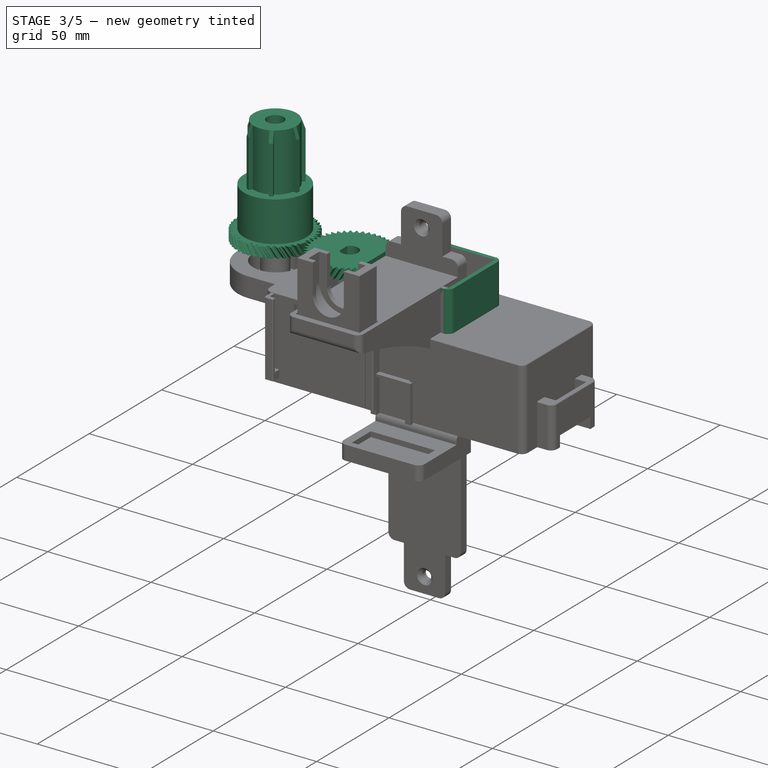
[diagram: stage 3 of 5 — iso view after this stage's code; geometry added in this stage tinted green]
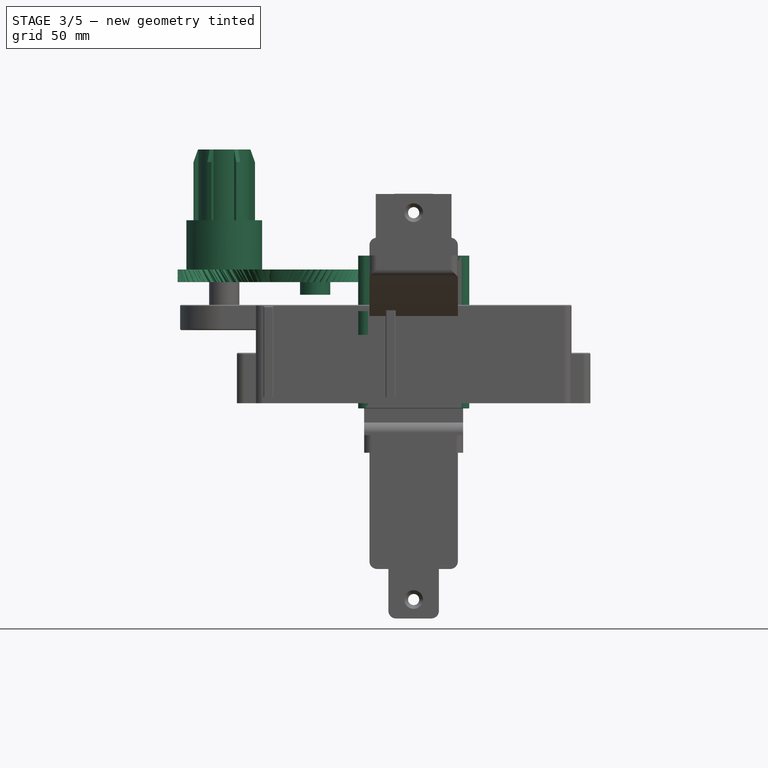
[diagram: stage 3 of 5 — front view after this stage's code; geometry added in this stage tinted green]
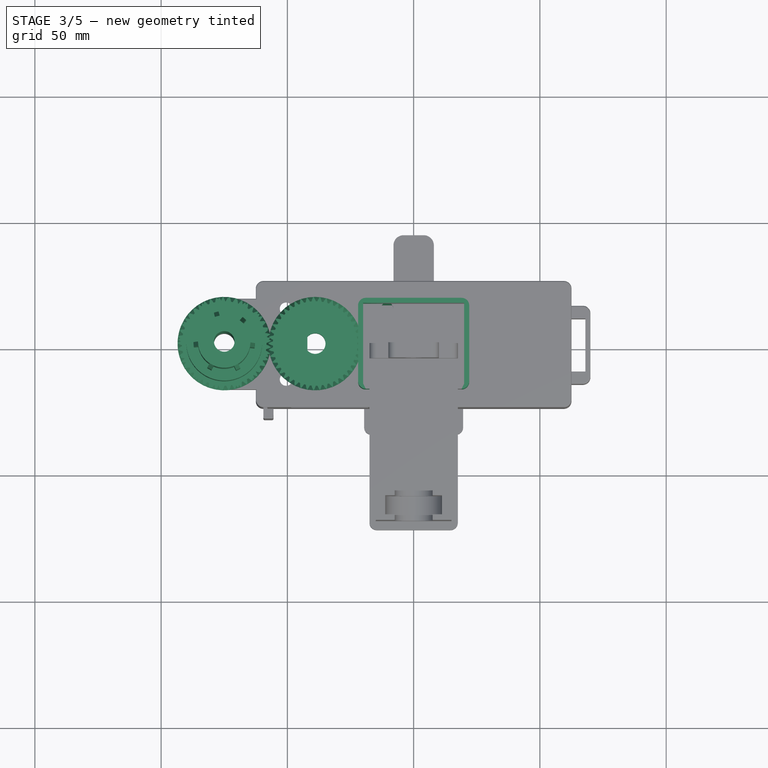
[diagram: stage 3 of 5 — top view after this stage's code; geometry added in this stage tinted green]
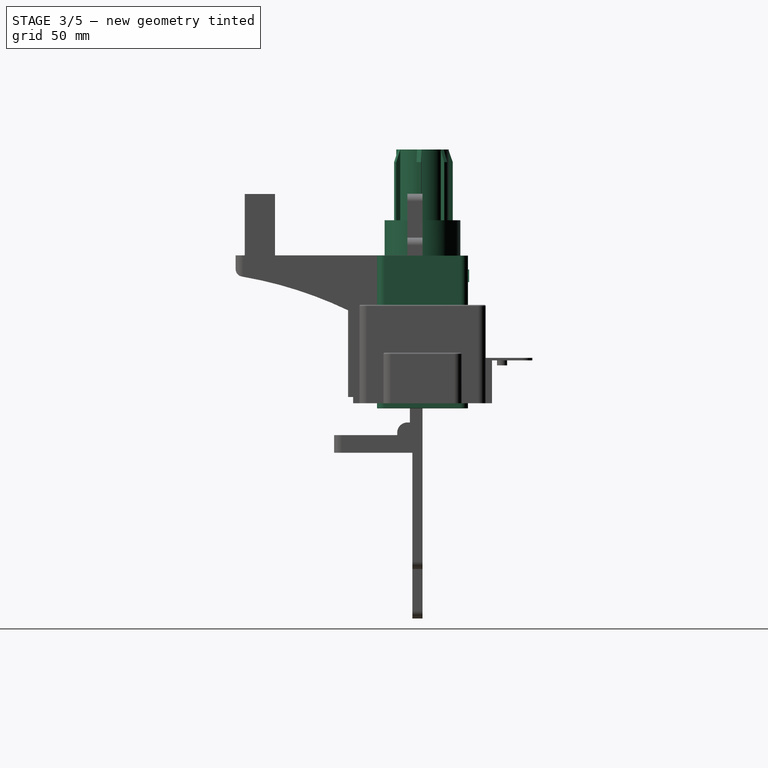
[diagram: stage 3 of 5 — right view after this stage's code; geometry added in this stage tinted green]
FEATURE [Sketcher::SketchObject] Sketch016  label="Sketch018"
  FullyConstrained = false
  MapMode = 5
  Support = -> [XY_Plane001]
  sketch-geometry (4):
    g0: LineSegment StartX=-20 StartY=16 StartZ=0 EndX=20 EndY=16 EndZ=0
    g1: LineSegment StartX=20 StartY=16 StartZ=0 EndX=20 EndY=-16 EndZ=0
    g2: LineSegment StartX=20 StartY=-16 StartZ=0 EndX=-20 EndY=-16 EndZ=0
    g3: LineSegment StartX=-20 StartY=-16 StartZ=0 EndX=-20 EndY=16 EndZ=0
  constraints (11):
    c: Coincident(g0,g1)
    c: Coincident(g1,g2)
    c: Coincident(g2,g3)
    c: Coincident(g3,g0)
    c: Horizontal(g0)
    c: Horizontal(g2)
    c: Vertical(g1)
    c: Vertical(g3)
    c: Symmetric(g0,g1,g-1)
    c: DistanceX(g0,g0) = 40
    c: DistanceY(g3,g3) = 32
FEATURE [PartDesign::Pad] Pad007
  AllowMultiFace = false
  Direction = (1,1,1)
  Length = 58.5
  Length2 = 100
  Profile = -> Sketch016
  Type = 0
FEATURE [PartDesign::Thickness] Thickness
  Base = -> Pad007 [Face6]
  BaseFeature = -> Pad007
  Intersection = false
  Join = 1
  Mode = 0
  SupportTransform = false
  Value = 2
FEATURE [PartDesign::Fillet] Fillet006
  Base = -> Thickness [Edge17,Edge22,Edge20,Edge18]
  BaseFeature = -> Thickness
  Radius = 3
  SupportTransform = false
FEATURE [Sketcher::SketchObject] Sketch017  label="Sketch019"
  ExternalGeometry = -> [Fillet006]
  FullyConstrained = false
  MapMode = 5
  Placement = pos=(-22,0,0) rot=(0.57735,-0.57735,-0.57735;2.0944rad)
  Support = -> [Fillet006]
  sketch-geometry (4):
    g0: LineSegment StartX=-8 StartY=53.5 StartZ=0 EndX=1.3 EndY=53.5 EndZ=0
    g1: LineSegment StartX=1.3 StartY=53.5 StartZ=0 EndX=1.3 EndY=42.2 EndZ=0
    g2: LineSegment StartX=1.3 StartY=42.2 StartZ=0 EndX=-8 EndY=42.2 EndZ=0
    g3: LineSegment StartX=-8 StartY=42.2 StartZ=0 EndX=-8 EndY=53.5 EndZ=0
  constraints (12):
    c: Coincident(g0,g1)
    c: Coincident(g1,g2)
    c: Coincident(g2,g3)
    c: Coincident(g3,g0)
    c: Horizontal(g0)
    c: Horizontal(g2)
    c: Vertical(g1)
    c: Vertical(g3)
    c: DistanceX(g0,g0) = 9.3
    c: DistanceY(g1,g1) = 11.3
    c: DistanceY(g0,g-3) = 5
    c: DistanceX(g-3,g0) = 7
FEATURE [PartDesign::Pocket] Pocket009
  AllowMultiFace = false
  BaseFeature = -> Fillet006
  Length = 5
  Length2 = 100
  Profile = -> Sketch017
  Type = 0
FEATURE [PartDesign::Fillet] Fillet008
  Base = -> Pocket009 [Edge27,Edge24,Edge18,Edge13,Edge30,Edge32,Edge29]
  BaseFeature = -> Pocket009
  Radius = 0.2
  SupportTransform = false
FEATURE [PartDesign::Body] Body001  label="driver-box"
  Group = -> [Sketch016,Pad007,Thickness,Fillet006,Sketch017,Pocket009,Fillet008,Sketch015,Pad006,Sketch003,Pad005,Fillet007,Sketch022,Pocket013,Sketch052,Pocket030,Sketch053,Pad020,Sketch054,Pocket031,Fillet021,Sketch130,Pad067,Sketch131,Pocket068,Sketch132,Pocket069,Sketch133,Pocket070,Fillet039]
  Origin = -> Origin001
  Placement = pos=(-33.3,-83,21) rot=(0,0.707107,0.707107;3.14159rad)
  Tip = -> Fillet039
FEATURE [Part::FeaturePython] involutegear  # WARN: FeaturePython — macro-defined, semantics opaque (R4)
  backlash = 0
  beta = 30
  clearance = 0
  double_helix = false
  dw = 34.8142
  head = 0.6
  height = 5
  module = 0.67
  numpoints = 6
  pressure_angle = 20
  properties_from_tool = true
  reversed_backlash = false
  shift = 0
  simple = false
  teeth = 45
  transverse_pitch = 2.43049
  undercut = false
FEATURE [Part::Cylinder] Cylinder007
  Angle = 360
  AttacherType = Attacher::AttachEngine3D
  Height = 5
  Placement = pos=(0,0,5) rot=(0,0,1;0rad)
  Radius = 6
FEATURE [Part::MultiFuse] Fusion003
  Shapes = -> [involutegear,Cylinder007]
FEATURE [Part::Cylinder] Cylinder008
  Angle = 360
  AttacherType = Attacher::AttachEngine3D
  Height = 20
  Placement = pos=(0,0,-2) rot=(0,0,1;0rad)
  Radius = 4.1
FEATURE [Part::Box] Box001  label="Cube001"
  AttacherType = Attacher::AttachEngine3D
  Height = 20
  Length = 10
  Placement = pos=(3.1,-5,-2) rot=(0,0,1;0rad)
  Width = 10
FEATURE [Part::Cut] Cut006
  Base = -> Cylinder008
  Tool = -> Box001
FEATURE [Part::Cut] Cut007  label="gear-motor-shaft-slanted"
  Base = -> Fusion003
  Placement = pos=(-39,0,53) rot=(0,1,0;3.14159rad)
  Tool = -> Cut006
FEATURE [Part::FeaturePython] involutegear001  # WARN: FeaturePython — macro-defined, semantics opaque (R4)
  backlash = 0
  beta = -30
  clearance = 0
  double_helix = false
  dw = 33.514
  head = 0.6
  height = 5
  module = 0.907
  numpoints = 6
  pressure_angle = 20
  properties_from_tool = true
  reversed_backlash = false
  shift = 0
  simple = false
  teeth = 32
  transverse_pitch = 3.29023
  undercut = false
FEATURE [Sketcher::SketchObject] Sketch156  label="Sketch157"
  FullyConstrained = false
  sketch-geometry (1):
    g0: Circle CenterX=0 CenterY=0 CenterZ=0 NormalX=0 NormalY=0 NormalZ=1 AngleXU=0 Radius=10.4
  constraints (2):
    c: Coincident(g0,g-1)
    c: Radius(g0) = 10.4
FEATURE [PartDesign::Pad] Pad082
  AllowMultiFace = false
  Direction = (1,1,1)
  Length = 28
  Length2 = 100
  Profile = -> Sketch156
  Type = 0
FEATURE [Sketcher::SketchObject] Sketch157  label="Sketch158"
  ExternalGeometry = -> [Pad082]
  FullyConstrained = false
  MapMode = 5
  Placement = pos=(0,0,28) rot=(0,0,1;0rad)
  Support = -> [Pad082]
  sketch-geometry (4):
    g0: LineSegment StartX=-12.161 StartY=0.9 StartZ=0 EndX=-10.361 EndY=0.9 EndZ=0
    g1: LineSegment StartX=-10.361 StartY=0.9 StartZ=0 EndX=-10.361 EndY=-0.9 EndZ=0
    g2: LineSegment StartX=-10.361 StartY=-0.9 StartZ=0 EndX=-12.161 EndY=-0.9 EndZ=0
    g3: LineSegment StartX=-12.161 StartY=-0.9 StartZ=0 EndX=-12.161 EndY=0.9 EndZ=0
  constraints (12):
    c: Coincident(g0,g1)
    c: Coincident(g1,g2)
    c: Coincident(g2,g3)
    c: Coincident(g3,g0)
    c: Horizontal(g0)
    c: Horizontal(g2)
    c: Vertical(g1)
    c: Vertical(g3)
    c: DistanceX(g0,g0) = 1.8
    c: Equal(g0,g1)
    c: PointOnObject(g1,g-3)
    c: PointOnObject(g0,g-3)
FEATURE [PartDesign::Pad] Pad083
  AllowMultiFace = false
  BaseFeature = -> Pad082
  Direction = (1,1,1)
  Length = 28
  Length2 = 100
  Profile = -> Sketch157
  Reversed = true
  Type = 0
FEATURE [PartDesign::PolarPattern] PolarPattern002
  Angle = 280
  Axis = -> Sketch157 [N_Axis]
  BaseFeature = -> Pad083
  Occurrences = 3
  Originals = -> [Pad083]
FEATURE [Sketcher::SketchObject] Sketch158  label="Sketch159"
  ExternalGeometry = -> [PolarPattern002]
  FullyConstrained = false
  MapMode = 5
  Placement = pos=(0,-0.9,0) rot=(1,0,0;1.5708rad)
  Support = -> [PolarPattern002]
  sketch-geometry (3):
    g0: LineSegment StartX=-12.161 StartY=28 StartZ=0 EndX=-10.361 EndY=28 EndZ=0
    g1: LineSegment StartX=-10.361 StartY=28 StartZ=0 EndX=-12.161 EndY=23 EndZ=0
    g2: LineSegment StartX=-12.161 StartY=23 StartZ=0 EndX=-12.161 EndY=28 EndZ=0
  constraints (7):
    c: Coincident(g-4,g0)
    c: Coincident(g0,g-3)
    c: Coincident(g0,g1)
    c: PointOnObject(g1,g-4)
    c: Coincident(g1,g2)
    c: Coincident(g2,g0)
    c: DistanceY(g2,g2) = 5
FEATURE [PartDesign::Pocket] Pocket077
  AllowMultiFace = false
  BaseFeature = -> PolarPattern002
  Length = 2
  Length2 = 100
  Profile = -> Sketch158
  Type = 0
FEATURE [PartDesign::PolarPattern] PolarPattern003
  Angle = 280
  Axis = -> Z_Axis028
  BaseFeature = -> Pocket077
  Occurrences = 3
  Originals = -> [Pocket077]
FEATURE [PartDesign::Body] Body026
  Group = -> [Sketch156,Pad082,Sketch157,Pad083,PolarPattern002,Sketch158,Pocket077,PolarPattern003]
  Origin = -> Origin028
  Placement = pos=(0,0,24.5) rot=(0,0,1;0rad)
  Tip = -> PolarPattern003
FEATURE [Part::Cylinder] Cylinder009
  Angle = 360
  AttacherType = Attacher::AttachEngine3D
  Height = 19.5
  Placement = pos=(0,0,5) rot=(0,0,1;0rad)
  Radius = 15
FEATURE [Part::MultiFuse] Fusion004
  Shapes = -> [involutegear001,Body026,Cylinder009]
FEATURE [Part::Cylinder] Cylinder010
  Angle = 360
  AttacherType = Attacher::AttachEngine3D
  Height = 80
  Placement = pos=(0,0,-23) rot=(0,0,1;0rad)
  Radius = 4.075
FEATURE [Part::Cut] Cut008  label="gear-main-axe-2"
  Base = -> Fusion004
  Placement = pos=(-75,0,48) rot=(0,0,1;0.087266rad)
  Tool = -> Cylinder010
FEATURE [Part::FeaturePython] involutegear004  # WARN: FeaturePython — macro-defined, semantics opaque (R4)
  backlash = 0
  beta = -30
  clearance = 0
  double_helix = false
  dw = 34.8142
  head = 0.6
  height = 5
  module = 0.67
  numpoints = 6
  pressure_angle = 20
  properties_from_tool = true
  reversed_backlash = false
  shift = 0
  simple = false
  teeth = 45
  transverse_pitch = 2.43049
  undercut = false
FEATURE [Sketcher::SketchObject] Sketch162  label="Sketch163"
  FullyConstrained = false
  sketch-geometry (1):
    g0: Circle CenterX=0 CenterY=0 CenterZ=0 NormalX=0 NormalY=0 NormalZ=1 AngleXU=0 Radius=10.4
  constraints (2):
    c: Coincident(g0,g-1)
    c: Radius(g0) = 10.4
FEATURE [PartDesign::Pad] Pad086
  AllowMultiFace = false
  Direction = (1,1,1)
  Length = 28
  Length2 = 100
  Profile = -> Sketch162
  Type = 0
FEATURE [Sketcher::SketchObject] Sketch163  label="Sketch164"
  ExternalGeometry = -> [Pad086]
  FullyConstrained = false
  MapMode = 5
  Placement = pos=(0,0,28) rot=(0,0,1;0rad)
  Support = -> [Pad086]
  sketch-geometry (4):
    g0: LineSegment StartX=-12.161 StartY=0.9 StartZ=0 EndX=-10.361 EndY=0.9 EndZ=0
    g1: LineSegment StartX=-10.361 StartY=0.9 StartZ=0 EndX=-10.361 EndY=-0.9 EndZ=0
    g2: LineSegment StartX=-10.361 StartY=-0.9 StartZ=0 EndX=-12.161 EndY=-0.9 EndZ=0
    g3: LineSegment StartX=-12.161 StartY=-0.9 StartZ=0 EndX=-12.161 EndY=0.9 EndZ=0
  constraints (12):
    c: Coincident(g0,g1)
    c: Coincident(g1,g2)
    c: Coincident(g2,g3)
    c: Coincident(g3,g0)
    c: Horizontal(g0)
    c: Horizontal(g2)
    c: Vertical(g1)
    c: Vertical(g3)
    c: DistanceX(g0,g0) = 1.8
    c: Equal(g0,g1)
    c: PointOnObject(g1,g-3)
    c: PointOnObject(g0,g-3)
FEATURE [PartDesign::Pad] Pad087
  AllowMultiFace = false
  BaseFeature = -> Pad086
  Direction = (1,1,1)
  Length = 28
  Length2 = 100
  Profile = -> Sketch163
  Reversed = true
  Type = 0
FEATURE [PartDesign::PolarPattern] PolarPattern006
  Angle = 280
  Axis = -> Sketch163 [N_Axis]
  BaseFeature = -> Pad087
  Occurrences = 3
  Originals = -> [Pad087]
FEATURE [Sketcher::SketchObject] Sketch164  label="Sketch165"
  ExternalGeometry = -> [PolarPattern006]
  FullyConstrained = false
  MapMode = 5
  Placement = pos=(0,-0.9,0) rot=(1,0,0;1.5708rad)
  Support = -> [PolarPattern006]
  sketch-geometry (3):
    g0: LineSegment StartX=-12.161 StartY=28 StartZ=0 EndX=-10.361 EndY=28 EndZ=0
    g1: LineSegment StartX=-10.361 StartY=28 StartZ=0 EndX=-12.161 EndY=23 EndZ=0
    g2: LineSegment StartX=-12.161 StartY=23 StartZ=0 EndX=-12.161 EndY=28 EndZ=0
  constraints (7):
    c: Coincident(g-4,g0)
    c: Coincident(g0,g-3)
    c: Coincident(g0,g1)
    c: PointOnObject(g1,g-4)
    c: Coincident(g1,g2)
    c: Coincident(g2,g0)
    c: DistanceY(g2,g2) = 5
FEATURE [PartDesign::Pocket] Pocket079
  AllowMultiFace = false
  BaseFeature = -> PolarPattern006
  Length = 2
  Length2 = 100
  Profile = -> Sketch164
  Type = 0
FEATURE [PartDesign::PolarPattern] PolarPattern007
  Angle = 280
  Axis = -> Z_Axis030
  BaseFeature = -> Pocket079
  Occurrences = 3
  Originals = -> [Pocket079]
FEATURE [PartDesign::Body] Body028
  Group = -> [Sketch162,Pad086,Sketch163,Pad087,PolarPattern006,Sketch164,Pocket079,PolarPattern007]
  Origin = -> Origin030
  Placement = pos=(0,0,15) rot=(0,0,1;0rad)
  Tip = -> PolarPattern007
FEATURE [Part::Cylinder] Cylinder015
  Angle = 360
  AttacherType = Attacher::AttachEngine3D
  Height = 10
  Placement = pos=(0,0,5) rot=(0,0,1;0rad)
  Radius = 15
FEATURE [Part::MultiFuse] Fusion007
  Shapes = -> [involutegear004,Body028,Cylinder015]
FEATURE [Part::Cylinder] Cylinder016
  Angle = 360
  AttacherType = Attacher::AttachEngine3D
  Height = 80
  Placement = pos=(0,0,-23) rot=(0,0,1;0rad)
  Radius = 4.075
FEATURE [Part::Cut] Cut012  label="gear-main-axe-slanted"
  Base = -> Fusion007
  Placement = pos=(-75,0,48) rot=(0,0,1;0.087266rad)
  Tool = -> Cylinder016
FEATURE [Part::Cylinder] Cylinder017
  Angle = 360
  AttacherType = Attacher::AttachEngine3D
  Height = 1
  Radius = 6
FEATURE [Part::Cut] Cut013  label="spacer-1mm"
  Base = -> Cylinder017
  Placement = pos=(-75,0,40) rot=(0,0,1;0rad)
  Tool = -> Cylinder018
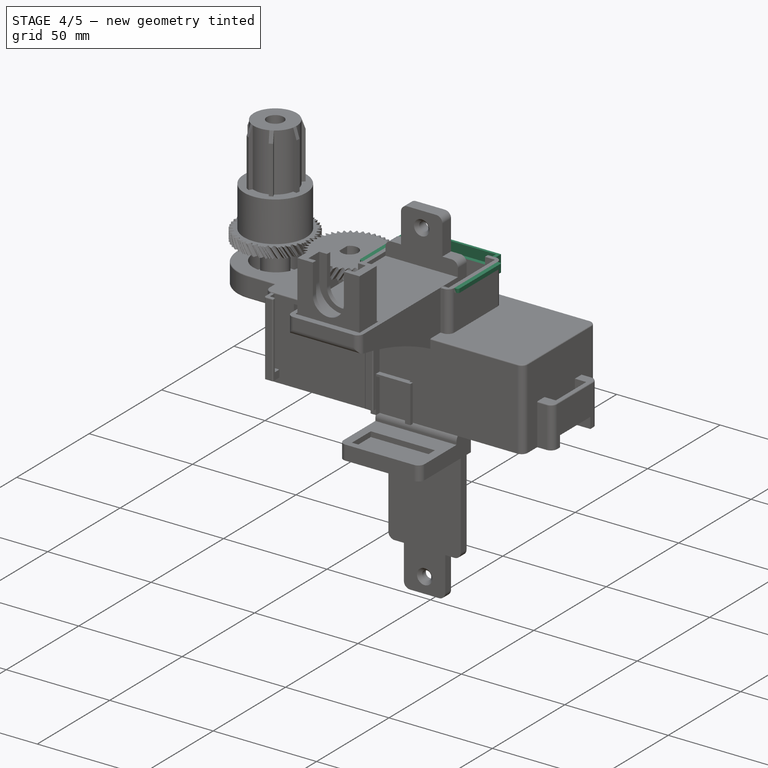
[diagram: stage 4 of 5 — iso view after this stage's code; geometry added in this stage tinted green]
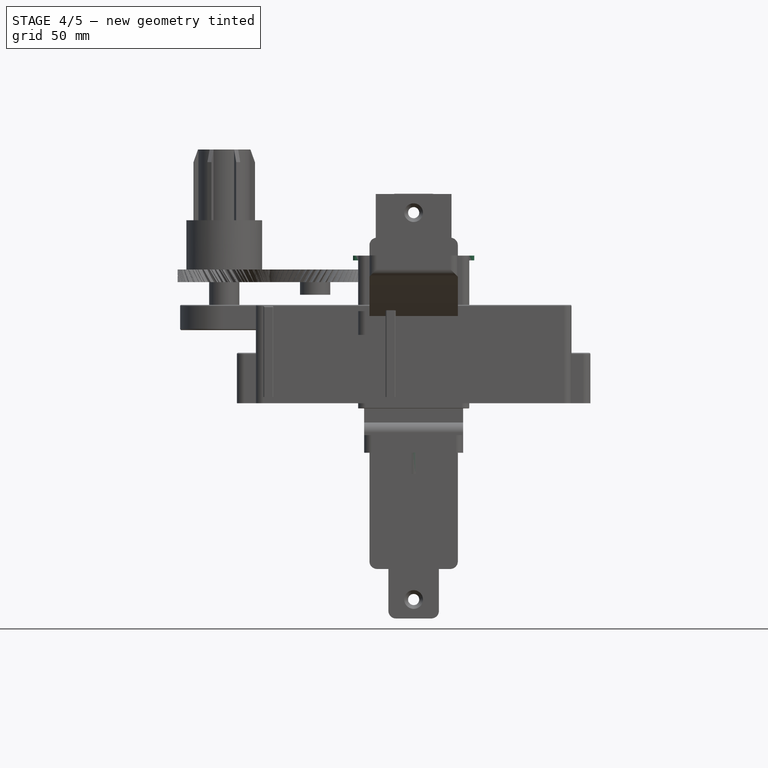
[diagram: stage 4 of 5 — front view after this stage's code; geometry added in this stage tinted green]
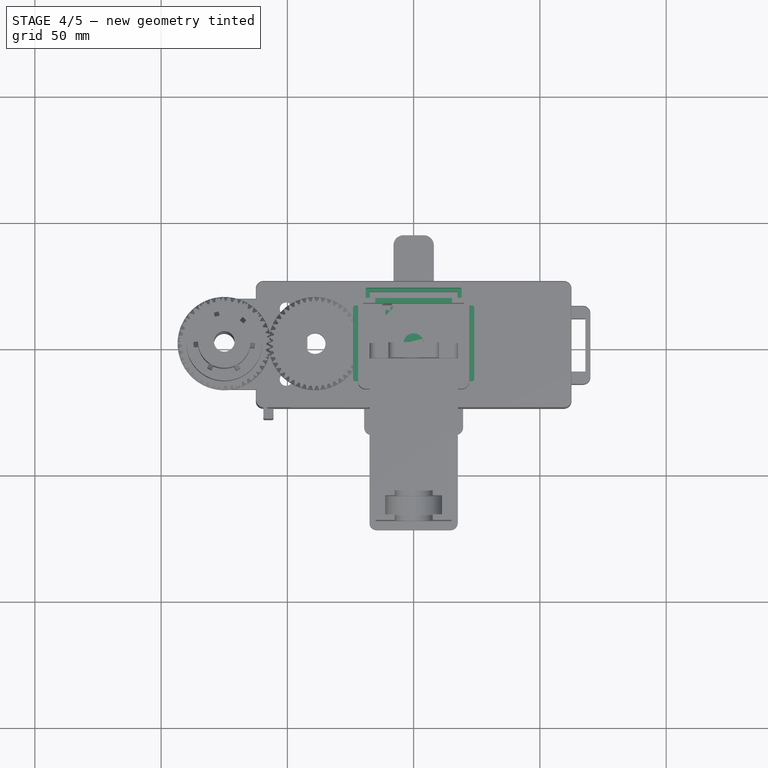
[diagram: stage 4 of 5 — top view after this stage's code; geometry added in this stage tinted green]
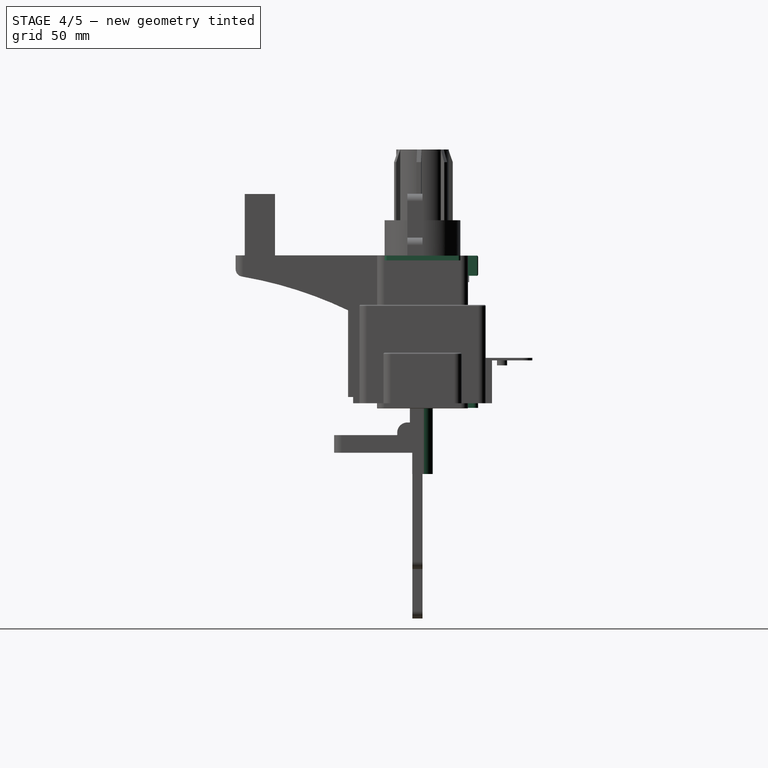
[diagram: stage 4 of 5 — right view after this stage's code; geometry added in this stage tinted green]
FEATURE [Sketcher::SketchObject] Sketch015  label="Sketch016"
  ExternalGeometry = -> [Fillet008]
  FullyConstrained = false
  MapMode = 5
  Placement = pos=(-22,0,0) rot=(0.57735,-0.57735,-0.57735;2.0944rad)
  Support = -> [Fillet008]
  sketch-geometry (4):
    g0: LineSegment StartX=-15 StartY=58.5 StartZ=0 EndX=15 EndY=58.5 EndZ=0
    g1: LineSegment StartX=15 StartY=58.5 StartZ=0 EndX=15 EndY=56.6 EndZ=0
    g2: LineSegment StartX=15 StartY=56.6 StartZ=0 EndX=-15 EndY=56.6 EndZ=0
    g3: LineSegment StartX=-15 StartY=56.6 StartZ=0 EndX=-15 EndY=58.5 EndZ=0
  constraints (10):
    c: Coincident(g0,g1)
    c: Coincident(g1,g2)
    c: Coincident(g2,g3)
    c: Coincident(g3,g0)
    c: Horizontal(g2)
    c: Vertical(g1)
    c: Vertical(g3)
    c: Coincident(g0,g-4)
    c: Coincident(g0,g-3)
    c: DistanceY(g1,g1) = 1.9
FEATURE [PartDesign::Pad] Pad006
  AllowMultiFace = false
  BaseFeature = -> Fillet008
  Direction = (1,1,1)
  Length = 2
  Length2 = 100
  Profile = -> Sketch015
  Type = 0
FEATURE [Sketcher::SketchObject] Sketch003  label="Sketch017"
  ExternalGeometry = -> [Pad006]
  FullyConstrained = false
  MapMode = 5
  Placement = pos=(22,0,0) rot=(0.57735,0.57735,0.57735;2.0944rad)
  Support = -> [Pad006]
  sketch-geometry (4):
    g0: LineSegment StartX=-15 StartY=58.5 StartZ=0 EndX=15 EndY=58.5 EndZ=0
    g1: LineSegment StartX=15 StartY=58.5 StartZ=0 EndX=15 EndY=56.6 EndZ=0
    g2: LineSegment StartX=15 StartY=56.6 StartZ=0 EndX=-15 EndY=56.6 EndZ=0
    g3: LineSegment StartX=-15 StartY=56.6 StartZ=0 EndX=-15 EndY=58.5 EndZ=0
  constraints (10):
    c: Coincident(g0,g1)
    c: Coincident(g1,g2)
    c: Coincident(g2,g3)
    c: Coincident(g3,g0)
    c: Horizontal(g2)
    c: Vertical(g1)
    c: Vertical(g3)
    c: Coincident(g0,g-3)
    c: Coincident(g0,g-4)
    c: DistanceY(g1,g1) = 1.9
FEATURE [PartDesign::Pad] Pad005
  AllowMultiFace = false
  BaseFeature = -> Pad006
  Direction = (1,1,1)
  Length = 2
  Length2 = 100
  Profile = -> Sketch003
  Type = 0
FEATURE [PartDesign::Fillet] Fillet007
  Base = -> Pad005 [Edge81,Edge66,Edge76,Edge29]
  BaseFeature = -> Pad005
  Radius = 1
  SupportTransform = false
FEATURE [Sketcher::SketchObject] Sketch022  label="Sketch024"
  FullyConstrained = false
  MapMode = 5
  Placement = pos=(0,-15,0) rot=(1,0,0;1.5708rad)
  sketch-geometry (4):
    g0: LineSegment StartX=-15.2 StartY=58 StartZ=0 EndX=15.2 EndY=58 EndZ=0
    g1: LineSegment StartX=15.2 StartY=58 StartZ=0 EndX=15.2 EndY=54.6 EndZ=0
    g2: LineSegment StartX=15.2 StartY=54.6 StartZ=0 EndX=-15.2 EndY=54.6 EndZ=0
    g3: LineSegment StartX=-15.2 StartY=54.6 StartZ=0 EndX=-15.2 EndY=58 EndZ=0
FEATURE [PartDesign::Pocket] Pocket013
  AllowMultiFace = false
  BaseFeature = -> Fillet007
  Length = 2
  Length2 = 100
  Profile = -> Sketch022
  Type = 0
FEATURE [Sketcher::SketchObject] Sketch052  label="Sketch053"
  ExternalGeometry = -> [Pocket013]
  FullyConstrained = false
  MapMode = 5
  Placement = pos=(0,18,0) rot=(0,0.707107,0.707107;3.14159rad)
  Support = -> [Pocket013]
  sketch-geometry (4):
    g0: LineSegment StartX=-15.2 StartY=58.5 StartZ=0 EndX=15.2 EndY=58.5 EndZ=0
    g1: LineSegment StartX=15.2 StartY=58.5 StartZ=0 EndX=15.2 EndY=55.1 EndZ=0
    g2: LineSegment StartX=15.2 StartY=55.1 StartZ=0 EndX=-15.2 EndY=55.1 EndZ=0
    g3: LineSegment StartX=-15.2 StartY=55.1 StartZ=0 EndX=-15.2 EndY=58.5 EndZ=0
  constraints (11):
    c: Coincident(g0,g1)
    c: Coincident(g1,g2)
    c: Coincident(g2,g3)
    c: Coincident(g3,g0)
    c: Horizontal(g2)
    c: Vertical(g1)
    c: Vertical(g3)
    c: PointOnObject(g0,g-3)
    c: DistanceX(g2,g2) = 30.4
    c: DistanceY(g1,g1) = 3.4
    c: Symmetric(g0,g0,g-2)
FEATURE [PartDesign::Pocket] Pocket030
  AllowMultiFace = false
  BaseFeature = -> Pocket013
  Length = 2
  Length2 = 100
  Profile = -> Sketch052
  Type = 0
FEATURE [Sketcher::SketchObject] Sketch053  label="Sketch054"
  ExternalGeometry = -> [Pocket030]
  FullyConstrained = false
  MapMode = 5
  Placement = pos=(0,18,0) rot=(0,0.707107,0.707107;3.14159rad)
  Support = -> [Pocket030]
  sketch-geometry (4):
    g0: LineSegment StartX=-19 StartY=58.5 StartZ=0 EndX=19 EndY=58.5 EndZ=0
    g1: LineSegment StartX=19 StartY=58.5 StartZ=0 EndX=19 EndY=50.5 EndZ=0
    g2: LineSegment StartX=19 StartY=50.5 StartZ=0 EndX=-19 EndY=50.5 EndZ=0
    g3: LineSegment StartX=-19 StartY=50.5 StartZ=0 EndX=-19 EndY=58.5 EndZ=0
  constraints (10):
    c: Coincident(g0,g1)
    c: Coincident(g1,g2)
    c: Coincident(g2,g3)
    c: Coincident(g3,g0)
    c: Horizontal(g2)
    c: Vertical(g1)
    c: Vertical(g3)
    c: Coincident(g0,g-3)
    c: Coincident(g0,g-4)
    c: DistanceY(g1,g1) = 8
FEATURE [PartDesign::Pad] Pad020
  AllowMultiFace = false
  BaseFeature = -> Pocket030
  Direction = (1,1,1)
  Length = 4
  Length2 = 100
  Profile = -> Sketch053
  Type = 0
FEATURE [Sketcher::SketchObject] Sketch054  label="Sketch055"
  ExternalGeometry = -> [Pad020]
  FullyConstrained = false
  MapMode = 5
  Placement = pos=(0,1.29e-14,58.5) rot=(0,0,1;0rad)
  Support = -> [Pad020]
  sketch-geometry (4):
    g0: LineSegment StartX=-17.4 StartY=20.4 StartZ=0 EndX=17.4 EndY=20.4 EndZ=0
    g1: LineSegment StartX=17.4 StartY=20.4 StartZ=0 EndX=17.4 EndY=18 EndZ=0
    g2: LineSegment StartX=17.4 StartY=18 StartZ=0 EndX=-17.4 EndY=18 EndZ=0
    g3: LineSegment StartX=-17.4 StartY=18 StartZ=0 EndX=-17.4 EndY=20.4 EndZ=0
  constraints (11):
    c: Coincident(g0,g1)
    c: Coincident(g1,g2)
    c: Coincident(g2,g3)
    c: Coincident(g3,g0)
    c: Horizontal(g0)
    c: Vertical(g1)
    c: Vertical(g3)
    c: Horizontal(g1,g-3)
    c: Symmetric(g1,g2,g-2)
    c: DistanceX(g2,g-3) = 2.2
    c: DistanceY(g3,g3) = 2.4
FEATURE [PartDesign::Pocket] Pocket031
  AllowMultiFace = false
  BaseFeature = -> Pad020
  Length = 8
  Length2 = 100
  Profile = -> Sketch054
  Type = 0
FEATURE [PartDesign::Fillet] Fillet021
  Base = -> Pocket031 [Edge123,Edge124,Edge71,Edge102]
  BaseFeature = -> Pocket031
  Radius = 0.5
  SupportTransform = false
FEATURE [Sketcher::SketchObject] Sketch092  label="Sketch093"
  FullyConstrained = false
  MapMode = 5
  Support = -> [XY_Plane017]
  sketch-geometry (4):
    g0: LineSegment StartX=-4 StartY=8 StartZ=0 EndX=4 EndY=8 EndZ=0
    g1: LineSegment StartX=4 StartY=8 StartZ=0 EndX=4 EndY=-8 EndZ=0
    g2: LineSegment StartX=4 StartY=-8 StartZ=0 EndX=-4 EndY=-8 EndZ=0
    g3: LineSegment StartX=-4 StartY=-8 StartZ=0 EndX=-4 EndY=8 EndZ=0
  constraints (11):
    c: Coincident(g0,g1)
    c: Coincident(g1,g2)
    c: Coincident(g2,g3)
    c: Coincident(g3,g0)
    c: Horizontal(g0)
    c: Horizontal(g2)
    c: Vertical(g1)
    c: Vertical(g3)
    c: Symmetric(g0,g1,g-1)
    c: DistanceX(g2,g2) = 8
    c: DistanceY(g1,g1) = 16
FEATURE [PartDesign::Pad] Pad041
  AllowMultiFace = false
  Direction = (1,1,1)
  Length = 16
  Length2 = 100
  Profile = -> Sketch092
  Type = 0
FEATURE [Sketcher::SketchObject] Sketch093  label="Sketch094"
  ExternalGeometry = -> [Pad041]
  FullyConstrained = false
  MapMode = 5
  Placement = pos=(0,0,0) rot=(1,0,0;3.14159rad)
  Support = -> [Pad041]
  sketch-geometry (4):
    g0: LineSegment StartX=-4 StartY=7 StartZ=0 EndX=4 EndY=7 EndZ=0
    g1: LineSegment StartX=4 StartY=7 StartZ=0 EndX=4 EndY=-7 EndZ=0
    g2: LineSegment StartX=4 StartY=-7 StartZ=0 EndX=-4 EndY=-7 EndZ=0
    g3: LineSegment StartX=-4 StartY=-7 StartZ=0 EndX=-4 EndY=7 EndZ=0
  constraints (12):
    c: Coincident(g0,g1)
    c: Coincident(g1,g2)
    c: Coincident(g2,g3)
    c: Coincident(g3,g0)
    c: Horizontal(g0)
    c: Horizontal(g2)
    c: Vertical(g1)
    c: Vertical(g3)
    c: PointOnObject(g0,g-4)
    c: PointOnObject(g1,g-3)
    c: DistanceY(g-3,g1) = 1
    c: DistanceY(g0,g-3) = 1
FEATURE [PartDesign::Pocket] Pocket053
  AllowMultiFace = false
  BaseFeature = -> Pad041
  Length = 5.5
  Length2 = 100
  Profile = -> Sketch093
  Type = 0
FEATURE [Sketcher::SketchObject] Sketch094  label="Sketch095"
  ExternalGeometry = -> [Pocket053]
  FullyConstrained = false
  MapMode = 5
  Placement = pos=(0,0,0) rot=(1,0,0;3.14159rad)
  Support = -> [Pocket053]
  sketch-geometry (4):
    g0: LineSegment StartX=4 StartY=8 StartZ=0 EndX=-12 EndY=8 EndZ=0
    g1: LineSegment StartX=-12 StartY=8 StartZ=0 EndX=-12 EndY=-8 EndZ=0
    g2: LineSegment StartX=-12 StartY=-8 StartZ=0 EndX=4 EndY=-8 EndZ=0
    g3: LineSegment StartX=4 StartY=-8 StartZ=0 EndX=4 EndY=8 EndZ=0
  constraints (10):
    c: Coincident(g0,g1)
    c: Coincident(g1,g2)
    c: Coincident(g2,g3)
    c: Coincident(g3,g0)
    c: Horizontal(g0)
    c: Horizontal(g2)
    c: Vertical(g1)
    c: Coincident(g0,g-3)
    c: Coincident(g2,g-4)
    c: DistanceX(g0,g-3) = 8
FEATURE [PartDesign::Pad] Pad042
  AllowMultiFace = false
  BaseFeature = -> Pocket053
  Direction = (1,1,1)
  Length = 1
  Length2 = 100
  Profile = -> Sketch094
  Type = 0
FEATURE [PartDesign::Fillet] Fillet025
  Base = -> Pad042 [Edge19,Edge34]
  BaseFeature = -> Pad042
  Radius = 4
  SupportTransform = false
FEATURE [PartDesign::Fillet] Fillet030
  Base = -> Fillet025 [Edge30]
  BaseFeature = -> Fillet025
  Radius = 3
  SupportTransform = false
FEATURE [Part::Part2DObjectPython] InvoluteGear001  # Draft 2D object (typed FeaturePython)
  ExternalGear = true
  HighPrecision = false
  Modules = 0.773
  NumberOfTeeth = 45
  PressureAngle = 37
  Visibility1 = false
FEATURE [PartDesign::Pad] Pad059
  AllowMultiFace = false
  Direction = (1,1,1)
  Length = 5
  Length2 = 100
  Profile = -> InvoluteGear001
  Type = 0
FEATURE [Part::Cylinder] Cylinder004
  Angle = 360
  AttacherType = Attacher::AttachEngine3D
  Height = 10
  Placement = pos=(0,0,-2) rot=(0,0,1;0rad)
  Radius = 15
FEATURE [Sketcher::SketchObject] Sketch118  label="Sketch119"
  FullyConstrained = false
  sketch-geometry (1):
    g0: Circle CenterX=0 CenterY=0 CenterZ=0 NormalX=0 NormalY=0 NormalZ=1 AngleXU=0 Radius=10.4
  constraints (2):
    c: Coincident(g0,g-1)
    c: Radius(g0) = 10.4
FEATURE [PartDesign::Pad] Pad061
  AllowMultiFace = false
  Direction = (1,1,1)
  Length = 28
  Length2 = 100
  Profile = -> Sketch118
  Type = 0
FEATURE [Sketcher::SketchObject] Sketch119  label="Sketch120"
  ExternalGeometry = -> [Pad061]
  FullyConstrained = false
  MapMode = 5
  Placement = pos=(0,0,28) rot=(0,0,1;0rad)
  Support = -> [Pad061]
  sketch-geometry (4):
    g0: LineSegment StartX=-12.161 StartY=0.9 StartZ=0 EndX=-10.361 EndY=0.9 EndZ=0
    g1: LineSegment StartX=-10.361 StartY=0.9 StartZ=0 EndX=-10.361 EndY=-0.9 EndZ=0
    g2: LineSegment StartX=-10.361 StartY=-0.9 StartZ=0 EndX=-12.161 EndY=-0.9 EndZ=0
    g3: LineSegment StartX=-12.161 StartY=-0.9 StartZ=0 EndX=-12.161 EndY=0.9 EndZ=0
  constraints (12):
    c: Coincident(g0,g1)
    c: Coincident(g1,g2)
    c: Coincident(g2,g3)
    c: Coincident(g3,g0)
    c: Horizontal(g0)
    c: Horizontal(g2)
    c: Vertical(g1)
    c: Vertical(g3)
    c: DistanceX(g0,g0) = 1.8
    c: Equal(g0,g1)
    c: PointOnObject(g1,g-3)
    c: PointOnObject(g0,g-3)
FEATURE [PartDesign::Pad] Pad062
  AllowMultiFace = false
  BaseFeature = -> Pad061
  Direction = (1,1,1)
  Length = 28
  Length2 = 100
  Profile = -> Sketch119
  Reversed = true
  Type = 0
FEATURE [PartDesign::PolarPattern] PolarPattern
  Angle = 280
  Axis = -> Sketch119 [N_Axis]
  BaseFeature = -> Pad062
  Occurrences = 3
  Originals = -> [Pad062]
FEATURE [Sketcher::SketchObject] Sketch120  label="Sketch121"
  ExternalGeometry = -> [PolarPattern]
  FullyConstrained = false
  MapMode = 5
  Placement = pos=(0,-0.9,0) rot=(1,0,0;1.5708rad)
  Support = -> [PolarPattern]
  sketch-geometry (3):
    g0: LineSegment StartX=-12.161 StartY=28 StartZ=0 EndX=-10.361 EndY=28 EndZ=0
    g1: LineSegment StartX=-10.361 StartY=28 StartZ=0 EndX=-12.161 EndY=23 EndZ=0
    g2: LineSegment StartX=-12.161 StartY=23 StartZ=0 EndX=-12.161 EndY=28 EndZ=0
  constraints (7):
    c: Coincident(g-4,g0)
    c: Coincident(g0,g-3)
    c: Coincident(g0,g1)
    c: PointOnObject(g1,g-4)
    c: Coincident(g1,g2)
    c: Coincident(g2,g0)
    c: DistanceY(g2,g2) = 5
FEATURE [PartDesign::Pocket] Pocket062
  AllowMultiFace = false
  BaseFeature = -> PolarPattern
  Length = 2
  Length2 = 100
  Profile = -> Sketch120
  Type = 0
FEATURE [PartDesign::PolarPattern] PolarPattern001
  Angle = 280
  Axis = -> Z_Axis024
  BaseFeature = -> Pocket062
  Occurrences = 3
  Originals = -> [Pocket062]
FEATURE [PartDesign::Body] Body006  label="driver-box-magnets"
  Group = -> [Sketch038,Pad012,Sketch039,Pocket024,Sketch040,Pad013,Fillet019,Sketch041,Pocket025,Chamfer,Sketch122,Pocket064,Mirrored001]
  Origin = -> Origin008
  Placement = pos=(-33.3,-26.5,31.7) rot=(-1,0,0;1.5708rad)
  Tip = -> Mirrored001
FEATURE [Part::Cylinder] Cylinder001
  Angle = 360
  AttacherType = Attacher::AttachEngine3D
  Height = 80
  Placement = pos=(0,0,-28) rot=(0,0,1;0rad)
  Radius = 4.075
FEATURE [Part::Cylinder] Cylinder005
  Angle = 360
  AttacherType = Attacher::AttachEngine3D
  Height = 8
  Radius = 6
FEATURE [Part::Cylinder] Cylinder006
  Angle = 360
  AttacherType = Attacher::AttachEngine3D
  Height = 8
  Radius = 4.1
FEATURE [Part::Cut] Cut005  label="gear-main-axe-spacer"
  Base = -> Cylinder005
  Placement = pos=(-75,0,40) rot=(0,0,1;0rad)
  Tool = -> Cylinder006
FEATURE [Sketcher::SketchObject] Sketch127  label="Sketch128"
  FullyConstrained = false
  MapMode = 5
  Support = -> [XY_Plane025]
  sketch-geometry (4):
    g0: LineSegment StartX=-10 StartY=10 StartZ=0 EndX=10 EndY=10 EndZ=0
    g1: LineSegment StartX=10 StartY=10 StartZ=0 EndX=10 EndY=-10 EndZ=0
    g2: LineSegment StartX=10 StartY=-10 StartZ=0 EndX=-10 EndY=-10 EndZ=0
    g3: LineSegment StartX=-10 StartY=-10 StartZ=0 EndX=-10 EndY=10 EndZ=0
  constraints (11):
    c: Coincident(g0,g1)
    c: Coincident(g1,g2)
    c: Coincident(g2,g3)
    c: Coincident(g3,g0)
    c: Horizontal(g0)
    c: Horizontal(g2)
    c: Vertical(g1)
    c: Vertical(g3)
    c: Symmetric(g1,g0,g-1)
    c: DistanceY(g1,g1) = 20
    c: DistanceX(g0,g0) = 20
FEATURE [PartDesign::Pad] Pad065
  AllowMultiFace = false
  Direction = (1,1,1)
  Length = 5
  Length2 = 100
  Profile = -> Sketch127
  Type = 0
FEATURE [Sketcher::SketchObject] Sketch128  label="Sketch129"
  ExternalGeometry = -> [Pad065]
  FullyConstrained = false
  MapMode = 5
  Placement = pos=(0,0,5) rot=(0,0,1;0rad)
  Support = -> [Pad065]
  sketch-geometry (4):
    g0: LineSegment StartX=-10 StartY=10 StartZ=0 EndX=10 EndY=10 EndZ=0
    g1: LineSegment StartX=10 StartY=10 StartZ=0 EndX=10 EndY=5 EndZ=0
    g2: LineSegment StartX=10 StartY=5 StartZ=0 EndX=-10 EndY=5 EndZ=0
    g3: LineSegment StartX=-10 StartY=5 StartZ=0 EndX=-10 EndY=10 EndZ=0
  constraints (10):
    c: Coincident(g0,g1)
    c: Coincident(g1,g2)
    c: Coincident(g2,g3)
    c: Coincident(g3,g0)
    c: Horizontal(g2)
    c: Vertical(g1)
    c: Vertical(g3)
    c: Coincident(g0,g-3)
    c: Coincident(g0,g-3)
    c: DistanceY(g3,g3) = 5
FEATURE [PartDesign::Pad] Pad066
  AllowMultiFace = false
  BaseFeature = -> Pad065
  Direction = (1,1,1)
  Length = 17
  Length2 = 100
  Profile = -> Sketch128
  Type = 0
FEATURE [Sketcher::SketchObject] Sketch129  label="Sketch130"
  ExternalGeometry = -> [Pad066]
  FullyConstrained = false
  MapMode = 5
  Placement = pos=(0,5,0) rot=(1,0,0;1.5708rad)
  Support = -> [Pad066]
  sketch-geometry (1):
    g0: Circle CenterX=0 CenterY=13.5 CenterZ=0 NormalX=0 NormalY=0 NormalZ=1 AngleXU=0 Radius=2.5
  constraints (3):
    c: PointOnObject(g0,g-2)
    c: Radius(g0) = 2.5
    c: Distance(g0,g-3) = 8.5
FEATURE [PartDesign::Pocket] Pocket067
  AllowMultiFace = false
  BaseFeature = -> Pad066
  Length = 5
  Length2 = 100
  Profile = -> Sketch129
  Type = 0
FEATURE [PartDesign::Chamfer] Chamfer003
  Angle = 45
  Base = -> Pocket067 [Edge26]
  BaseFeature = -> Pocket067
  ChamferType = 0
  FlipDirection = false
  Size = 2
  Size2 = 1
  SupportTransform = false
FEATURE [PartDesign::Fillet] Fillet032
  Base = -> Chamfer003 [Edge19,Edge15]
  BaseFeature = -> Chamfer003
  Radius = 4
  SupportTransform = false
FEATURE [PartDesign::Body] Body023  label="hook"
  Group = -> [Sketch127,Pad065,Sketch128,Pad066,Sketch129,Pocket067,Chamfer003,Fillet032]
  Origin = -> Origin025
  Placement = pos=(-63,-19,10) rot=(0.57735,0.57735,-0.57735;4.18879rad)
  Tip = -> Fillet032
FEATURE [Sketcher::SketchObject] Sketch130  label="Sketch131"
  ExternalGeometry = -> [Fillet021]
  FullyConstrained = false
  MapMode = 5
  Placement = pos=(0,18,0) rot=(0,0.707107,0.707107;3.14159rad)
  Support = -> [Fillet021]
  sketch-geometry (8):
    g0: LineSegment StartX=-19 StartY=18.2 StartZ=0 EndX=-15 EndY=18.2 EndZ=0
    g1: LineSegment StartX=-15 StartY=18.2 StartZ=0 EndX=-15 EndY=-1.8 EndZ=0
    g2: LineSegment StartX=-15 StartY=-1.8 StartZ=0 EndX=-19 EndY=-1.8 EndZ=0
    g3: LineSegment StartX=-19 StartY=-1.8 StartZ=0 EndX=-19 EndY=18.2 EndZ=0
    g4: LineSegment StartX=1.4 StartY=18.2 StartZ=0 EndX=5.4 EndY=18.2 EndZ=0
    g5: LineSegment StartX=5.4 StartY=18.2 StartZ=0 EndX=5.4 EndY=-1.8 EndZ=0
    g6: LineSegment StartX=5.4 StartY=-1.8 StartZ=0 EndX=1.4 EndY=-1.8 EndZ=0
    g7: LineSegment StartX=1.4 StartY=-1.8 StartZ=0 EndX=1.4 EndY=18.2 EndZ=0
  constraints (23):
    c: Coincident(g0,g1)
    c: Coincident(g1,g2)
    c: Coincident(g2,g3)
    c: Coincident(g3,g0)
    c: Horizontal(g0)
    c: Horizontal(g2)
    c: Vertical(g1)
    c: Vertical(g3)
    c: DistanceX(g2,g2) = 4
    c: Coincident(g4,g5)
    c: Coincident(g5,g6)
    c: Coincident(g6,g7)
    c: Coincident(g7,g4)
    c: Horizontal(g4)
    c: Horizontal(g6)
    c: Vertical(g5)
    c: Vertical(g7)
    c: Horizontal(g0,g4)
    c: Horizontal(g1,g6)
    c: Equal(g0,g4)
    c: DistanceX(g1,g6) = 16.4
    c: Coincident(g2,g-4)
    c: DistanceY(g5,g5) = 20
FEATURE [PartDesign::Pad] Pad067
  AllowMultiFace = false
  BaseFeature = -> Fillet021
  Direction = (1,1,1)
  Length = 4
  Length2 = 100
  Profile = -> Sketch130
  Type = 0
FEATURE [Sketcher::SketchObject] Sketch131  label="Sketch132"
  ExternalGeometry = -> [Pad067]
  FullyConstrained = false
  MapMode = 5
  Placement = pos=(0,4e-15,18.2) rot=(0,0,1;0rad)
  Support = -> [Pad067]
  sketch-geometry (4):
    g0: LineSegment StartX=15 StartY=18 StartZ=0 EndX=17.3 EndY=18 EndZ=0
    g1: LineSegment StartX=17.3 StartY=18 StartZ=0 EndX=17.3 EndY=20.3 EndZ=0
    g2: LineSegment StartX=17.3 StartY=20.3 StartZ=0 EndX=15 EndY=20.3 EndZ=0
    g3: LineSegment StartX=15 StartY=20.3 StartZ=0 EndX=15 EndY=18 EndZ=0
  constraints (11):
    c: Coincident(g0,g1)
    c: Coincident(g1,g2)
    c: Coincident(g2,g3)
    c: Coincident(g3,g0)
    c: Horizontal(g0)
    c: Horizontal(g2)
    c: Vertical(g1)
    c: Vertical(g3)
    c: Coincident(g0,g-3)
    c: Equal(g2,g1)
    c: DistanceX(g2,g2) = 2.3
FEATURE [PartDesign::Pocket] Pocket068
  AllowMultiFace = false
  BaseFeature = -> Pad067
  Length = 19
  Length2 = 100
  Profile = -> Sketch131
  Type = 0
FEATURE [Sketcher::SketchObject] Sketch132  label="Sketch133"
  ExternalGeometry = -> [Pocket068]
  FullyConstrained = false
  MapMode = 5
  Placement = pos=(0,4e-15,18.2) rot=(0,0,1;0rad)
  Support = -> [Pocket068]
  sketch-geometry (4):
    g0: LineSegment StartX=-1.4 StartY=18 StartZ=0 EndX=-3.7 EndY=18 EndZ=0
    g1: LineSegment StartX=-3.7 StartY=18 StartZ=0 EndX=-3.7 EndY=20.3 EndZ=0
    g2: LineSegment StartX=-3.7 StartY=20.3 StartZ=0 EndX=-1.4 EndY=20.3 EndZ=0
    g3: LineSegment StartX=-1.4 StartY=20.3 StartZ=0 EndX=-1.4 EndY=18 EndZ=0
  constraints (11):
    c: Coincident(g0,g1)
    c: Coincident(g1,g2)
    c: Coincident(g2,g3)
    c: Coincident(g3,g0)
    c: Horizontal(g0)
    c: Horizontal(g2)
    c: Vertical(g1)
    c: Vertical(g3)
    c: Coincident(g0,g-3)
    c: Equal(g2,g1)
    c: DistanceX(g2,g2) = 2.3
FEATURE [PartDesign::Pocket] Pocket069
  AllowMultiFace = false
  BaseFeature = -> Pocket068
  Length = 19
  Length2 = 100
  Profile = -> Sketch132
  Type = 0
FEATURE [Sketcher::SketchObject] Sketch133  label="Sketch134"
  ExternalGeometry = -> [Pocket069]
  FullyConstrained = false
  MapMode = 5
  Placement = pos=(0,18,0) rot=(0,0.707107,0.707107;3.14159rad)
  Support = -> [Pocket069]
  sketch-geometry (5):
    g0: ArcOfCircle CenterX=-10.3 CenterY=5 CenterZ=0 NormalX=0 NormalY=0 NormalZ=1 AngleXU=0 Radius=5 StartAngle=1.5708 EndAngle=4.71239
    g1: ArcOfCircle CenterX=-3.3 CenterY=5 CenterZ=0 NormalX=0 NormalY=0 NormalZ=1 AngleXU=0 Radius=5 StartAngle=4.71239 EndAngle=7.85398
    g2: LineSegment StartX=-10.3 StartY=0 StartZ=0 EndX=-3.3 EndY=0 EndZ=0
    g3: LineSegment StartX=-10.3 StartY=10 StartZ=0 EndX=-3.3 EndY=10 EndZ=0
    g4: LineSegment StartX=-6.8 StartY=-1.8 StartZ=0 EndX=-6.8 EndY=23.2 EndZ=0
  constraints (12):
    c: Tangent(g0,g3) = 1.5708
    c: Tangent(g0,g2) = -1.5708
    c: Tangent(g2,g1) = -1.5708
    c: Tangent(g3,g1) = 1.5708
    c: Equal(g0,g1)
    c: DistanceY(g1,g1) = 10
    c: DistanceX(g0,g1) = 7
    c: Horizontal(g1,g-1)
    c: PointOnObject(g4,g-3)
    c: Symmetric(g-3,g-3,g4)
    c: Symmetric(g1,g0,g4)
    c: DistanceY(g4,g4) = 25
FEATURE [PartDesign::Pocket] Pocket070
  AllowMultiFace = false
  BaseFeature = -> Pocket069
  Length = 5
  Length2 = 100
  Profile = -> Sketch133
  Type = 0
FEATURE [Sketcher::SketchObject] Sketch155  label="Sketch156"
  ExternalGeometry = -> [Fillet030]
  FullyConstrained = false
  MapMode = 5
  Placement = pos=(0,0,-1) rot=(1,0,0;3.14159rad)
  Support = -> [Fillet030]
  sketch-geometry (2):
    g0: Circle CenterX=2e-16 CenterY=3.5 CenterZ=0 NormalX=0 NormalY=0 NormalZ=1 AngleXU=0 Radius=2.16
    g1: Circle CenterX=2e-16 CenterY=-3.5 CenterZ=0 NormalX=0 NormalY=0 NormalZ=1 AngleXU=0 Radius=2.16
  constraints (5):
    c: Radius(g1) = 2.16
    c: Equal(g1,g0)
    c: Symmetric(g0,g1,g-1)
    c: DistanceX(g0,g-3) = 4
    c: DistanceY(g1,g0) = 7
FEATURE [PartDesign::Pocket] Pocket076
  AllowMultiFace = false
  BaseFeature = -> Fillet030
  Length = 5
  Length2 = 100
  Profile = -> Sketch155
  Type = 0
FEATURE [PartDesign::Body] Body015  label="leds-support"
  Group = -> [Sketch092,Pad041,Sketch093,Pocket053,Sketch094,Pad042,Fillet025,Fillet030,Sketch155,Pocket076]
  Origin = -> Origin017
  Placement = pos=(-39.9733,-80.9,99.037) rot=(-0.577924,0.579672,0.574443;2.09092rad)
  Tip = -> Pocket076
FEATURE [PartDesign::Fillet] Fillet039
  Base = -> Pocket070 [Edge143,Edge178]
  BaseFeature = -> Pocket070
  Radius = 2
  SupportTransform = false
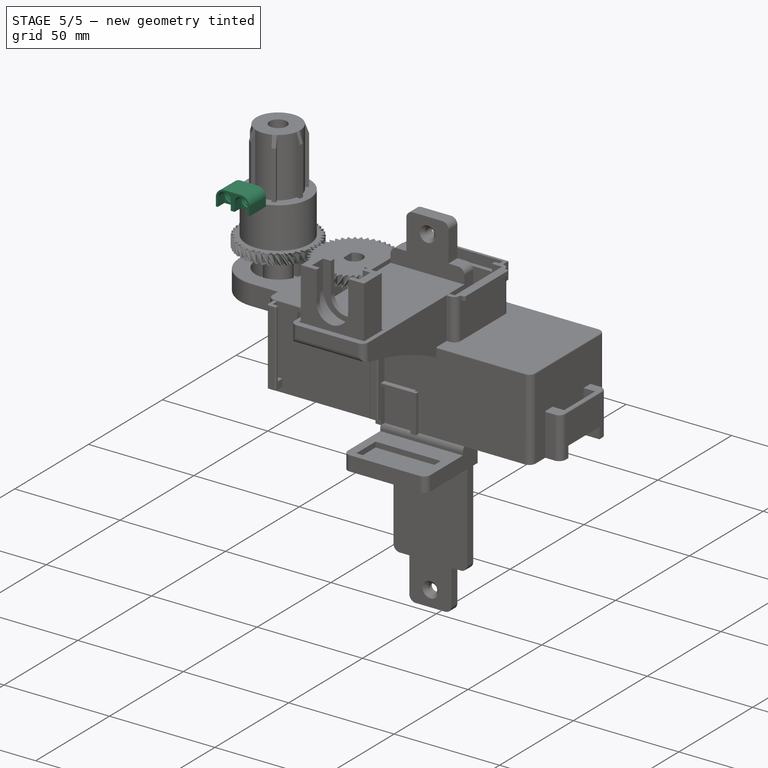
[diagram: stage 5 of 5 — iso view after this stage's code; geometry added in this stage tinted green]
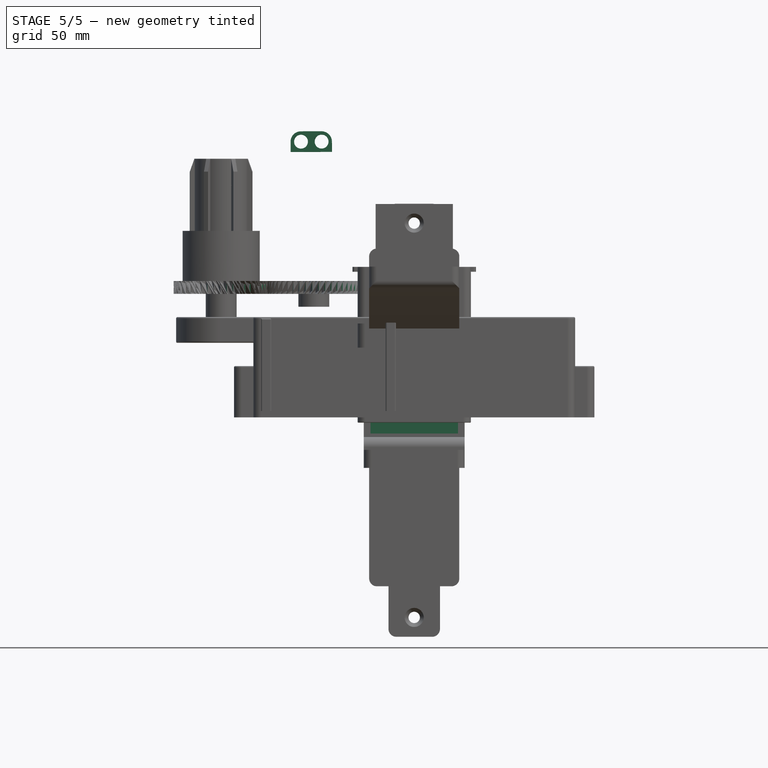
[diagram: stage 5 of 5 — front view after this stage's code; geometry added in this stage tinted green]
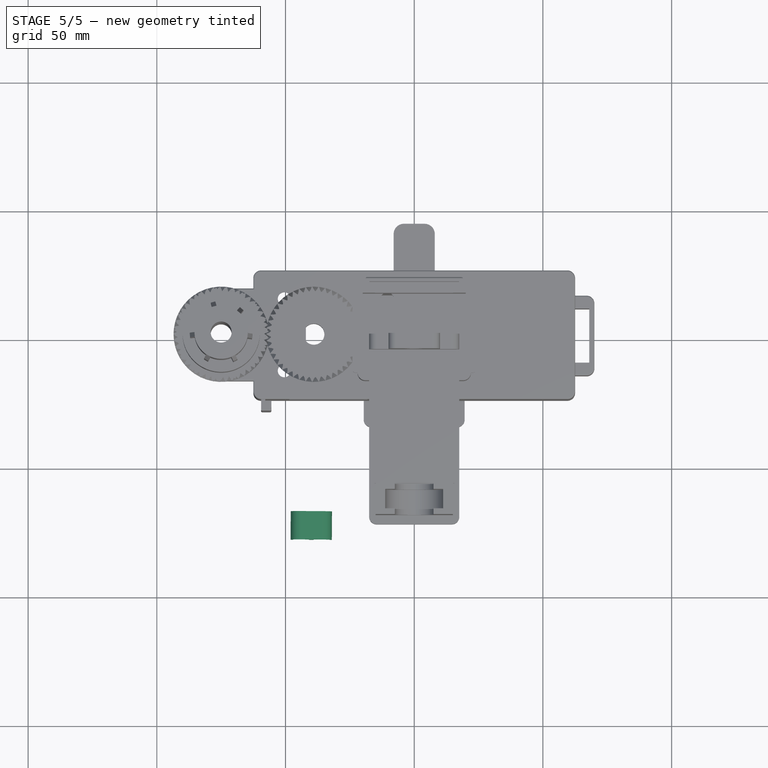
[diagram: stage 5 of 5 — top view after this stage's code; geometry added in this stage tinted green]
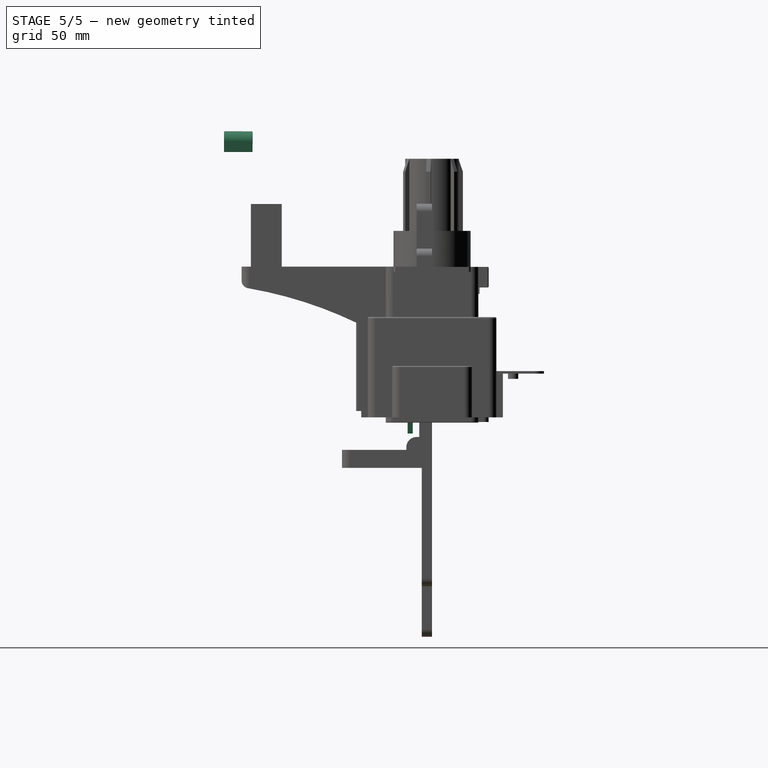
[diagram: stage 5 of 5 — right view after this stage's code; geometry added in this stage tinted green]
FEATURE [Sketcher::SketchObject] Sketch038
  FullyConstrained = false
  MapMode = 5
  Support = -> [XY_Plane008]
  sketch-geometry (4):
    g0: LineSegment StartX=-15 StartY=7.5 StartZ=0 EndX=15 EndY=7.5 EndZ=0
    g1: LineSegment StartX=15 StartY=7.5 StartZ=0 EndX=15 EndY=-7.5 EndZ=0
    g2: LineSegment StartX=15 StartY=-7.5 StartZ=0 EndX=-15 EndY=-7.5 EndZ=0
    g3: LineSegment StartX=-15 StartY=-7.5 StartZ=0 EndX=-15 EndY=7.5 EndZ=0
  constraints (11):
    c: Coincident(g0,g1)
    c: Coincident(g1,g2)
    c: Coincident(g2,g3)
    c: Coincident(g3,g0)
    c: Horizontal(g0)
    c: Horizontal(g2)
    c: Vertical(g1)
    c: Vertical(g3)
    c: Symmetric(g0,g1,g-1)
    c: DistanceX(g0,g0) = 30
    c: DistanceY(g1,g1) = 15
FEATURE [PartDesign::Pad] Pad012
  AllowMultiFace = false
  Direction = (1,1,1)
  Length = 3.5
  Length2 = 100
  Midplane = true
  Profile = -> Sketch038
  Type = 0
FEATURE [Sketcher::SketchObject] Sketch039  label="Sketch040"
  FullyConstrained = false
  MapMode = 5
  Placement = pos=(0,0,1.75) rot=(0,0,1;0rad)
  Support = -> [Pad012]
  sketch-geometry (2):
    g0: Circle CenterX=-7.5 CenterY=0 CenterZ=0 NormalX=0 NormalY=0 NormalZ=1 AngleXU=0 Radius=3.2
    g1: Circle CenterX=7.5 CenterY=0 CenterZ=0 NormalX=0 NormalY=0 NormalZ=1 AngleXU=0 Radius=3.2
  constraints (5):
    c: Radius(g0) = 3.2
    c: Equal(g0,g1) = 3.3
    c: PointOnObject(g1,g-1)
    c: Symmetric(g0,g1,g-1)
    c: DistanceX(g0,g1) = 15
FEATURE [PartDesign::Pocket] Pocket024
  AllowMultiFace = false
  BaseFeature = -> Pad012
  Length = 2.5
  Length2 = 100
  Profile = -> Sketch039
  Type = 0
FEATURE [Sketcher::SketchObject] Sketch040  label="Sketch041"
  ExternalGeometry = -> [Pocket024]
  FullyConstrained = false
  MapMode = 5
  Placement = pos=(0,-7.5,0) rot=(1,0,0;1.5708rad)
  Support = -> [Pocket024]
  sketch-geometry (4):
    g0: LineSegment StartX=-17 StartY=1.75 StartZ=0 EndX=17 EndY=1.75 EndZ=0
    g1: LineSegment StartX=17 StartY=1.75 StartZ=0 EndX=17 EndY=-6.25 EndZ=0
    g2: LineSegment StartX=17 StartY=-6.25 StartZ=0 EndX=-17 EndY=-6.25 EndZ=0
    g3: LineSegment StartX=-17 StartY=-6.25 StartZ=0 EndX=-17 EndY=1.75 EndZ=0
  constraints (11):
    c: Coincident(g0,g1)
    c: Coincident(g1,g2)
    c: Coincident(g2,g3)
    c: Coincident(g3,g0)
    c: Horizontal(g2)
    c: Vertical(g1)
    c: Vertical(g3)
    c: Symmetric(g0,g0,g-2)
    c: Horizontal(g0,g-4)
    c: DistanceX(g-4,g0) = 2
    c: DistanceY(g1,g1) = 8
FEATURE [PartDesign::Pad] Pad013
  AllowMultiFace = false
  BaseFeature = -> Pocket024
  Direction = (1,1,1)
  Length = 2
  Length2 = 100
  Profile = -> Sketch040
  Type = 0
FEATURE [PartDesign::Fillet] Fillet019
  Base = -> Pad013 [Edge23,Edge27]
  BaseFeature = -> Pad013
  Radius = 3
  SupportTransform = false
FEATURE [Sketcher::SketchObject] Sketch041  label="Sketch042"
  ExternalGeometry = -> [Fillet019]
  FullyConstrained = false
  MapMode = 5
  Placement = pos=(0,0,-0.75) rot=(0,0,1;0rad)
  Support = -> [Fillet019]
  sketch-geometry (2):
    g0: Circle CenterX=-7.5 CenterY=0 CenterZ=0 NormalX=0 NormalY=0 NormalZ=1 AngleXU=0 Radius=3.15
    g1: Circle CenterX=7.5 CenterY=0 CenterZ=0 NormalX=0 NormalY=0 NormalZ=1 AngleXU=0 Radius=3.15
  constraints (4):
    c: Coincident(g0,g-3)
    c: Radius(g0) = 3.15
    c: Coincident(g1,g-4)
    c: Equal(g0,g1)
FEATURE [PartDesign::Pocket] Pocket025
  AllowMultiFace = false
  BaseFeature = -> Fillet019
  Length = 1
  Length2 = 100
  Profile = -> Sketch041
  Type = 0
FEATURE [PartDesign::Chamfer] Chamfer
  Angle = 45
  Base = -> Pocket025 [Edge7,Edge8]
  BaseFeature = -> Pocket025
  ChamferType = 0
  FlipDirection = false
  Size = 0.3
  Size2 = 1
  SupportTransform = false
FEATURE [Sketcher::SketchObject] Sketch043  label="Sketch044"
  FullyConstrained = false
  MapMode = 5
  Support = -> [XY_Plane009]
  sketch-geometry (4):
    g0: LineSegment StartX=-15 StartY=4.5 StartZ=0 EndX=15 EndY=4.5 EndZ=0
    g1: LineSegment StartX=15 StartY=4.5 StartZ=0 EndX=15 EndY=-4.5 EndZ=0
    g2: LineSegment StartX=15 StartY=-4.5 StartZ=0 EndX=-15 EndY=-4.5 EndZ=0
    g3: LineSegment StartX=-15 StartY=-4.5 StartZ=0 EndX=-15 EndY=4.5 EndZ=0
  constraints (11):
    c: Coincident(g0,g1)
    c: Coincident(g1,g2)
    c: Coincident(g2,g3)
    c: Coincident(g3,g0)
    c: Horizontal(g0)
    c: Horizontal(g2)
    c: Vertical(g1)
    c: Vertical(g3)
    c: Symmetric(g0,g1,g-1)
    c: DistanceX(g0,g0) = 30
    c: DistanceY(g1,g1) = 9
FEATURE [PartDesign::Pad] Pad014
  AllowMultiFace = false
  Direction = (1,1,1)
  Length = 3.5
  Length2 = 100
  Profile = -> Sketch043
  Type = 0
FEATURE [Sketcher::SketchObject] Sketch044  label="Sketch045"
  FullyConstrained = false
  MapMode = 5
  Placement = pos=(0,0,0) rot=(1,0,0;3.14159rad)
  Support = -> [Pad014]
  sketch-geometry (2):
    g0: Circle CenterX=-7.5 CenterY=0 CenterZ=0 NormalX=0 NormalY=0 NormalZ=1 AngleXU=0 Radius=3.15
    g1: Circle CenterX=7.5 CenterY=0 CenterZ=0 NormalX=0 NormalY=0 NormalZ=1 AngleXU=0 Radius=3.15
  constraints (5):
    c: PointOnObject(g0,g-1)
    c: Symmetric(g1,g0,g-1)
    c: Radius(g0) = 3.15
    c: Equal(g0,g1)
    c: DistanceX(g0,g1) = 15
FEATURE [PartDesign::Pocket] Pocket027
  AllowMultiFace = false
  BaseFeature = -> Pad014
  Length = 2.5
  Length2 = 100
  Profile = -> Sketch044
  Type = 0
FEATURE [Sketcher::SketchObject] Sketch045  label="Sketch046"
  ExternalGeometry = -> [Pocket027]
  FullyConstrained = false
  MapMode = 5
  Placement = pos=(0,0,2.5) rot=(1,0,0;3.14159rad)
  Support = -> [Pocket027]
  sketch-geometry (2):
    g0: Circle CenterX=-7.5 CenterY=0 CenterZ=0 NormalX=0 NormalY=0 NormalZ=1 AngleXU=0 Radius=3.15
    g1: Circle CenterX=7.5 CenterY=0 CenterZ=0 NormalX=0 NormalY=0 NormalZ=1 AngleXU=0 Radius=3.15
  constraints (4):
    c: Coincident(g0,g-3)
    c: Coincident(g1,g-4)
    c: Radius(g0) = 3.15
    c: Equal(g0,g1)
FEATURE [PartDesign::Pocket] Pocket028
  AllowMultiFace = false
  BaseFeature = -> Pocket027
  Length = 1.5
  Length2 = 100
  Profile = -> Sketch045
  Type = 0
FEATURE [Sketcher::SketchObject] Sketch046  label="Sketch047"
  ExternalGeometry = -> [Pocket028]
  FullyConstrained = false
  MapMode = 5
  Placement = pos=(15,0,0) rot=(0.57735,0.57735,0.57735;2.0944rad)
  Support = -> [Pocket028]
  sketch-geometry (4):
    g0: LineSegment StartX=-4.5 StartY=3.5 StartZ=0 EndX=4.5 EndY=3.5 EndZ=0
    g1: LineSegment StartX=4.5 StartY=3.5 StartZ=0 EndX=4.5 EndY=2.5 EndZ=0
    g2: LineSegment StartX=4.5 StartY=2.5 StartZ=0 EndX=-4.5 EndY=2.5 EndZ=0
    g3: LineSegment StartX=-4.5 StartY=2.5 StartZ=0 EndX=-4.5 EndY=3.5 EndZ=0
  constraints (10):
    c: Coincident(g0,g1)
    c: Coincident(g1,g2)
    c: Coincident(g2,g3)
    c: Coincident(g3,g0)
    c: Horizontal(g2)
    c: Vertical(g1)
    c: Vertical(g3)
    c: Coincident(g0,g-3)
    c: Coincident(g0,g-3)
    c: DistanceY(g1,g1) = 1
FEATURE [PartDesign::Pad] Pad015
  AllowMultiFace = false
  BaseFeature = -> Pocket028
  Direction = (1,1,1)
  Length = 4
  Length2 = 100
  Profile = -> Sketch046
  Type = 0
FEATURE [Sketcher::SketchObject] Sketch047  label="Sketch048"
  ExternalGeometry = -> [Pad015]
  FullyConstrained = false
  MapMode = 5
  Placement = pos=(-15,0,0) rot=(0.57735,-0.57735,-0.57735;2.0944rad)
  Support = -> [Pad015]
  sketch-geometry (4):
    g0: LineSegment StartX=-4.5 StartY=3.5 StartZ=0 EndX=4.5 EndY=3.5 EndZ=0
    g1: LineSegment StartX=4.5 StartY=3.5 StartZ=0 EndX=4.5 EndY=2.5 EndZ=0
    g2: LineSegment StartX=4.5 StartY=2.5 StartZ=0 EndX=-4.5 EndY=2.5 EndZ=0
    g3: LineSegment StartX=-4.5 StartY=2.5 StartZ=0 EndX=-4.5 EndY=3.5 EndZ=0
  constraints (10):
    c: Coincident(g0,g1)
    c: Coincident(g1,g2)
    c: Coincident(g2,g3)
    c: Coincident(g3,g0)
    c: Horizontal(g2)
    c: Vertical(g1)
    c: Vertical(g3)
    c: Coincident(g0,g-3)
    c: Coincident(g0,g-3)
    c: DistanceY(g1,g1) = 1
FEATURE [PartDesign::Pad] Pad016
  AllowMultiFace = false
  BaseFeature = -> Pad015
  Direction = (1,1,1)
  Length = 4
  Length2 = 100
  Profile = -> Sketch047
  Type = 0
FEATURE [Sketcher::SketchObject] Sketch061  label="Sketch062"
  FullyConstrained = false
  MapMode = 5
  Support = -> [XY_Plane012]
  sketch-geometry (4):
    g0: LineSegment StartX=-2.5 StartY=17.5 StartZ=0 EndX=2.5 EndY=17.5 EndZ=0
    g1: LineSegment StartX=2.5 StartY=17.5 StartZ=0 EndX=2.5 EndY=-17.5 EndZ=0
    g2: LineSegment StartX=2.5 StartY=-17.5 StartZ=0 EndX=-2.5 EndY=-17.5 EndZ=0
    g3: LineSegment StartX=-2.5 StartY=-17.5 StartZ=0 EndX=-2.5 EndY=17.5 EndZ=0
  constraints (11):
    c: Coincident(g0,g1)
    c: Coincident(g1,g2)
    c: Coincident(g2,g3)
    c: Coincident(g3,g0)
    c: Horizontal(g0)
    c: Horizontal(g2)
    c: Vertical(g1)
    c: Vertical(g3)
    c: Symmetric(g1,g0,g-1)
    c: DistanceX(g0,g0) = 5
    c: DistanceY(g1,g1) = 35
FEATURE [PartDesign::Pad] Pad023
  AllowMultiFace = false
  Direction = (1,1,1)
  Length = 11.5
  Length2 = 100
  Profile = -> Sketch061
  Type = 0
FEATURE [Sketcher::SketchObject] Sketch062  label="Sketch063"
  ExternalGeometry = -> [Pad023]
  FullyConstrained = false
  MapMode = 5
  Placement = pos=(0,0,11.5) rot=(0,0,1;0rad)
  Support = -> [Pad023]
  sketch-geometry (4):
    g0: LineSegment StartX=-2.5 StartY=-17.5 StartZ=0 EndX=2.5 EndY=-17.5 EndZ=0
    g1: LineSegment StartX=2.5 StartY=-17.5 StartZ=0 EndX=2.5 EndY=-15.5 EndZ=0
    g2: LineSegment StartX=2.5 StartY=-15.5 StartZ=0 EndX=-2.5 EndY=-15.5 EndZ=0
    g3: LineSegment StartX=-2.5 StartY=-15.5 StartZ=0 EndX=-2.5 EndY=-17.5 EndZ=0
  constraints (10):
    c: Coincident(g0,g1)
    c: Coincident(g1,g2)
    c: Coincident(g2,g3)
    c: Coincident(g3,g0)
    c: Horizontal(g2)
    c: Vertical(g1)
    c: Vertical(g3)
    c: Coincident(g0,g-3)
    c: Coincident(g0,g-3)
    c: DistanceY(g1,g1) = 2
FEATURE [PartDesign::Pad] Pad024
  AllowMultiFace = false
  BaseFeature = -> Pad023
  Direction = (1,1,1)
  Length = 2
  Length2 = 100
  Profile = -> Sketch062
  Type = 0
FEATURE [PartDesign::Chamfer] Chamfer001
  Angle = 45
  Base = -> Pad024 [Edge22]
  BaseFeature = -> Pad024
  ChamferType = 0
  FlipDirection = false
  Size = 1.5
  Size2 = 1
  SupportTransform = false
FEATURE [PartDesign::Body] Body010  label="pcb-spacer"
  Group = -> [Sketch061,Pad023,Sketch062,Pad024,Chamfer001]
  Origin = -> Origin012
  Placement = pos=(0,49.7,0) rot=(0,0,-1;1.5708rad)
  Tip = -> Chamfer001
FEATURE [Sketcher::SketchObject] Sketch066  label="Sketch067"
  FullyConstrained = false
  MapMode = 5
  Support = -> [XY_Plane013]
  sketch-geometry (4):
    g0: LineSegment StartX=-4 StartY=4 StartZ=0 EndX=4 EndY=4 EndZ=0
    g1: LineSegment StartX=4 StartY=4 StartZ=0 EndX=4 EndY=-4 EndZ=0
    g2: LineSegment StartX=4 StartY=-4 StartZ=0 EndX=-4 EndY=-4 EndZ=0
    g3: LineSegment StartX=-4 StartY=-4 StartZ=0 EndX=-4 EndY=4 EndZ=0
  constraints (11):
    c: Coincident(g0,g1)
    c: Coincident(g1,g2)
    c: Coincident(g2,g3)
    c: Coincident(g3,g0)
    c: Horizontal(g0)
    c: Horizontal(g2)
    c: Vertical(g1)
    c: Vertical(g3)
    c: Symmetric(g0,g1,g-1)
    c: Equal(g0,g1)
    c: DistanceX(g0,g0) = 8
FEATURE [PartDesign::Pad] Pad027
  AllowMultiFace = false
  Direction = (1,1,1)
  Length = 11
  Length2 = 100
  Midplane = true
  Profile = -> Sketch066
  Type = 0
FEATURE [Sketcher::SketchObject] Sketch067  label="Sketch068"
  ExternalGeometry = -> [Pad027]
  FullyConstrained = false
  MapMode = 5
  Placement = pos=(0,0,5.5) rot=(0,0,1;0rad)
  Support = -> [Pad027]
  sketch-geometry (4):
    g0: ArcOfCircle CenterX=0 CenterY=0 CenterZ=0 NormalX=0 NormalY=0 NormalZ=1 AngleXU=0 Radius=3.1 StartAngle=0 EndAngle=3.14159
    g1: LineSegment StartX=-3.1 StartY=4e-16 StartZ=0 EndX=-3.1 EndY=-4 EndZ=0
    g2: LineSegment StartX=3.1 StartY=0 StartZ=0 EndX=3.1 EndY=-4 EndZ=0
    g3: LineSegment StartX=-3.1 StartY=-4 StartZ=0 EndX=3.1 EndY=-4 EndZ=0
  constraints (12):
    c: PointOnObject(g0,g-1)
    c: PointOnObject(g0,g-1)
    c: Coincident(g0,g-1)
    c: Radius(g0) = 3.1
    c: Coincident(g1,g0)
    c: Vertical(g1)
    c: Coincident(g2,g0)
    c: Vertical(g2)
    c: PointOnObject(g2,g-3)
    c: Horizontal(g2,g1)
    c: Coincident(g3,g1)
    c: Coincident(g3,g2)
FEATURE [PartDesign::Pocket] Pocket037
  AllowMultiFace = false
  BaseFeature = -> Pad027
  Length = 4.5
  Length2 = 100
  Profile = -> Sketch067
  Type = 0
FEATURE [Sketcher::SketchObject] Sketch068  label="Sketch069"
  ExternalGeometry = -> [Pocket037]
  FullyConstrained = false
  MapMode = 5
  Placement = pos=(0,0,1) rot=(0,0,1;0rad)
  Support = -> [Pocket037]
  sketch-geometry (1):
    g0: Circle CenterX=0 CenterY=0 CenterZ=0 NormalX=0 NormalY=0 NormalZ=1 AngleXU=0 Radius=3.1
  constraints (2):
    c: Coincident(g0,g-1)
    c: PointOnObject(g-3,g0)
FEATURE [PartDesign::Pocket] Pocket038
  AllowMultiFace = false
  BaseFeature = -> Pocket037
  Length = 1
  Length2 = 100
  Profile = -> Sketch068
  Type = 0
FEATURE [Sketcher::SketchObject] Sketch069  label="Sketch070"
  FullyConstrained = false
  MapMode = 5
  Placement = pos=(0,0,-9e-16) rot=(0,0,1;0rad)
  Support = -> [Pocket038]
  sketch-geometry (1):
    g0: Circle CenterX=0 CenterY=0 CenterZ=0 NormalX=0 NormalY=0 NormalZ=1 AngleXU=0 Radius=2.7
  constraints (2):
    c: Coincident(g0,g-1)
    c: Radius(g0) = 2.7
FEATURE [PartDesign::Pocket] Pocket039
  AllowMultiFace = false
  BaseFeature = -> Pocket038
  Length = 5
  Length2 = 100
  Profile = -> Sketch069
  Type = 1
FEATURE [PartDesign::Fillet] Fillet022
  Base = -> Pocket039 [Edge2]
  BaseFeature = -> Pocket039
  Radius = 4
  SupportTransform = false
FEATURE [PartDesign::Body] Body011  label="led-right"
  Group = -> [Sketch066,Pad027,Sketch067,Pocket037,Sketch068,Pocket038,Sketch069,Pocket039,Fillet022]
  Origin = -> Origin013
  Placement = pos=(-7,0,0) rot=(0,0,1;0rad)
  Tip = -> Fillet022
FEATURE [Part::Mirroring] Part__Mirroring  label="led-left"
  Base = (0,0,0)
  Normal = (1,0,0)
  Placement = pos=(-15,0,0) rot=(0,0,1;0rad)
  Source = -> Fillet022
FEATURE [Part::Fuse] Fusion  label="leds-cap"
  Base = -> Body011
  Placement = pos=(-29.0021,-75.3494,107.187) rot=(0.999989,-0.00453,-0.001515;1.5678rad)
  Tool = -> Part__Mirroring
FEATURE [PartDesign::Fillet] Fillet024
  Base = -> Pad016 [Edge18,Edge38,Edge33,Edge12]
  BaseFeature = -> Pad016
  Radius = 1
  SupportTransform = false
FEATURE [Part::Part2DObjectPython] InvoluteGear  # Draft 2D object (typed FeaturePython)
  ExternalGear = true
  HighPrecision = false
  Modules = 0.773
  NumberOfTeeth = 45
  PressureAngle = 37
  Visibility1 = true
FEATURE [PartDesign::Pad] Pad058
  AllowMultiFace = false
  Direction = (1,1,1)
  Length = 5
  Length2 = 100
  Profile = -> InvoluteGear
  Type = 0
FEATURE [PartDesign::Body] Body019
  Group = -> [InvoluteGear,Pad058]
  Origin = -> Origin021
  Tip = -> Pad058
FEATURE [Part::Cylinder] Cylinder
  Angle = 360
  AttacherType = Attacher::AttachEngine3D
  Height = 20
  Placement = pos=(0,0,-2) rot=(0,0,1;0rad)
  Radius = 4.1
FEATURE [Part::Box] Box  label="Cube"
  AttacherType = Attacher::AttachEngine3D
  Height = 20
  Length = 10
  Placement = pos=(3.1,-5,-2) rot=(0,0,1;0rad)
  Width = 10
FEATURE [Part::Cut] Cut
  Base = -> Cylinder
  Tool = -> Box
FEATURE [PartDesign::Body] Body020
  Group = -> [InvoluteGear001,Pad059]
  Origin = -> Origin022
  Placement = pos=(0,0,-7) rot=(0,0,1;0rad)
  Tip = -> Pad059
FEATURE [Part::Cylinder] Cylinder002
  Angle = 360
  AttacherType = Attacher::AttachEngine3D
  Height = 5
  Placement = pos=(0,0,5) rot=(0,0,1;0rad)
  Radius = 6
FEATURE [Part::MultiFuse] Fusion001
  Shapes = -> [Body019,Cylinder002]
FEATURE [Part::Cut] Cut003  label="gear-motor-shaft"
  Base = -> Fusion001
  Placement = pos=(-39,0,53) rot=(0,1,0;3.14159rad)
  Tool = -> Cut
FEATURE [PartDesign::Body] Body022
  Group = -> [Sketch118,Pad061,Sketch119,Pad062,PolarPattern,Sketch120,Pocket062,PolarPattern001]
  Origin = -> Origin024
  Placement = pos=(0,0,7.5) rot=(0,0,1;0rad)
  Tip = -> PolarPattern001
FEATURE [Part::MultiFuse] Fusion002
  Shapes = -> [Body020,Cylinder004,Body022]
FEATURE [Sketcher::SketchObject] Sketch121  label="Sketch122"
  ExternalGeometry = -> [Fillet024]
  FullyConstrained = false
  MapMode = 5
  Placement = pos=(0,0,3.5) rot=(0,0,1;0rad)
  Support = -> [Fillet024]
  sketch-geometry (5):
    g0: LineSegment StartX=-6 StartY=-4.5 StartZ=0 EndX=-9 EndY=-4.5 EndZ=0
    g1: LineSegment StartX=-9 StartY=-4.5 StartZ=0 EndX=-9 EndY=-1.5 EndZ=0
    g2: LineSegment StartX=-9 StartY=-1.5 StartZ=0 EndX=-6 EndY=-1.5 EndZ=0
    g3: LineSegment StartX=-6 StartY=-1.5 StartZ=0 EndX=-6 EndY=-4.5 EndZ=0
    g4: LineSegment StartX=-7.5 StartY=-4.5 StartZ=0 EndX=-7.5 EndY=6.33337 EndZ=0
  constraints (14):
    c: Coincident(g0,g1)
    c: Coincident(g1,g2)
    c: Coincident(g2,g3)
    c: Coincident(g3,g0)
    c: Horizontal(g0)
    c: Horizontal(g2)
    c: Vertical(g1)
    c: Vertical(g3)
    c: PointOnObject(g0,g-3)
    c: PointOnObject(g4,g-3)
    c: DistanceX(g4,g-1) = 7.5
    c: Symmetric(g0,g0,g4)
    c: DistanceX(g2,g2) = 3
    c: DistanceY(g3,g3) = 3
FEATURE [PartDesign::Pocket] Pocket063
  AllowMultiFace = false
  BaseFeature = -> Fillet024
  Length = 1
  Length2 = 100
  Profile = -> Sketch121
  Type = 0
FEATURE [PartDesign::Mirrored] Mirrored
  BaseFeature = -> Pocket063
  MirrorPlane = -> Sketch121 [V_Axis]
  Originals = -> [Pocket063]
FEATURE [PartDesign::Body] Body007  label="motor-box-magnets"
  Group = -> [Sketch043,Pad014,Sketch044,Pocket027,Sketch045,Pocket028,Sketch046,Pad015,Sketch047,Pad016,Fillet024,Sketch121,Pocket063,Mirrored]
  Origin = -> Origin009
  Placement = pos=(-33.3,-25,31.8) rot=(-1,0,0;1.5708rad)
  Tip = -> Mirrored
FEATURE [Sketcher::SketchObject] Sketch122  label="Sketch123"
  ExternalGeometry = -> [Chamfer]
  FullyConstrained = false
  MapMode = 5
  Placement = pos=(0,0,-1.75) rot=(1,0,0;3.14159rad)
  Support = -> [Chamfer]
  sketch-geometry (5):
    g0: LineSegment StartX=-7.5 StartY=-7.5 StartZ=0 EndX=-7.5 EndY=5.28537 EndZ=0
    g1: LineSegment StartX=-9 StartY=-7.5 StartZ=0 EndX=-6 EndY=-7.5 EndZ=0
    g2: LineSegment StartX=-6 StartY=-7.5 StartZ=0 EndX=-6 EndY=-1.5 EndZ=0
    g3: LineSegment StartX=-6 StartY=-1.5 StartZ=0 EndX=-9 EndY=-1.5 EndZ=0
    g4: LineSegment StartX=-9 StartY=-1.5 StartZ=0 EndX=-9 EndY=-7.5 EndZ=0
  constraints (14):
    c: PointOnObject(g0,g-3)
    c: Vertical(g0)
    c: DistanceX(g0,g-1) = 7.5
    c: Coincident(g1,g2)
    c: Coincident(g2,g3)
    c: Coincident(g3,g4)
    c: Coincident(g4,g1)
    c: Horizontal(g3)
    c: Vertical(g2)
    c: Vertical(g4)
    c: PointOnObject(g1,g-3)
    c: Symmetric(g1,g1,g0)
    c: DistanceX(g3,g3) = 3
    c: DistanceY(g2,g2) = 6
FEATURE [PartDesign::Pocket] Pocket064
  AllowMultiFace = false
  BaseFeature = -> Chamfer
  Length = 1
  Length2 = 100
  Profile = -> Sketch122
  Type = 0
FEATURE [PartDesign::Mirrored] Mirrored001
  BaseFeature = -> Pocket064
  MirrorPlane = -> Sketch122 [V_Axis]
  Originals = -> [Pocket064]
FEATURE [Part::Cut] Cut004  label="gear-main-axe"
  Base = -> Fusion002
  Placement = pos=(-75,0,55) rot=(0,0,1;0.087266rad)
  Tool = -> Cylinder001
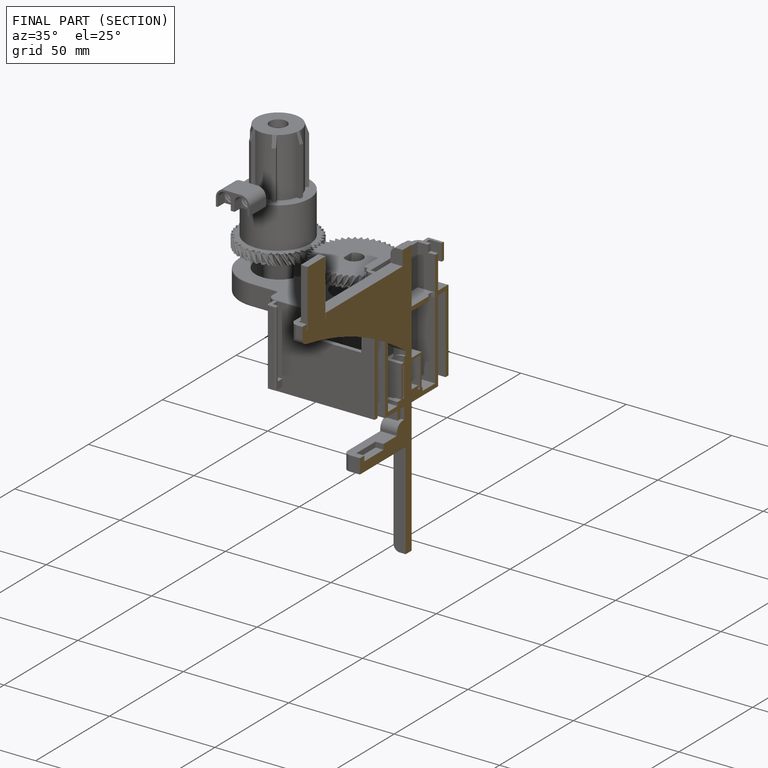
[diagram: finished part — half-section view (interior)]
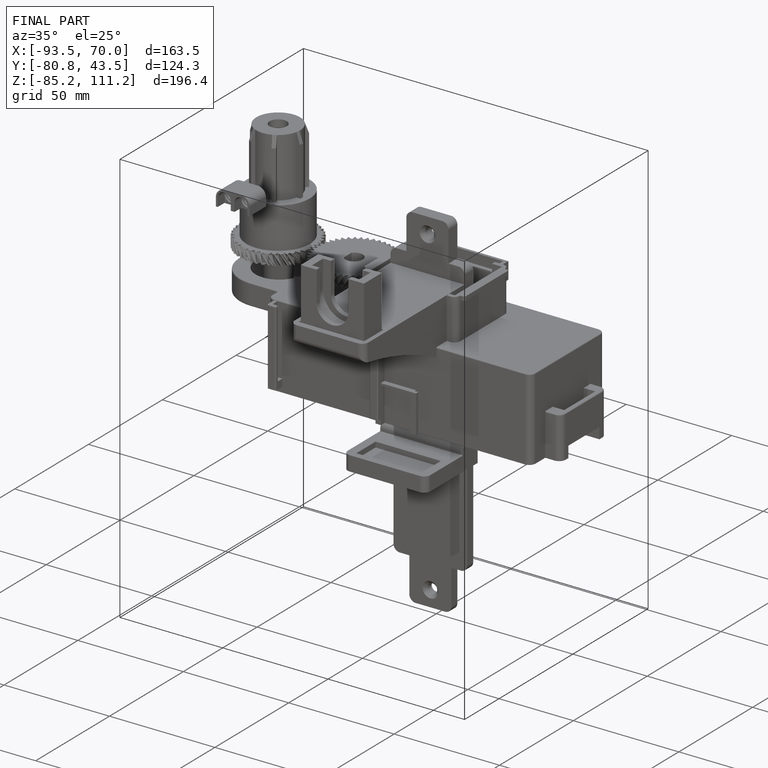
[diagram: finished part — iso view with bounding-box wireframe]
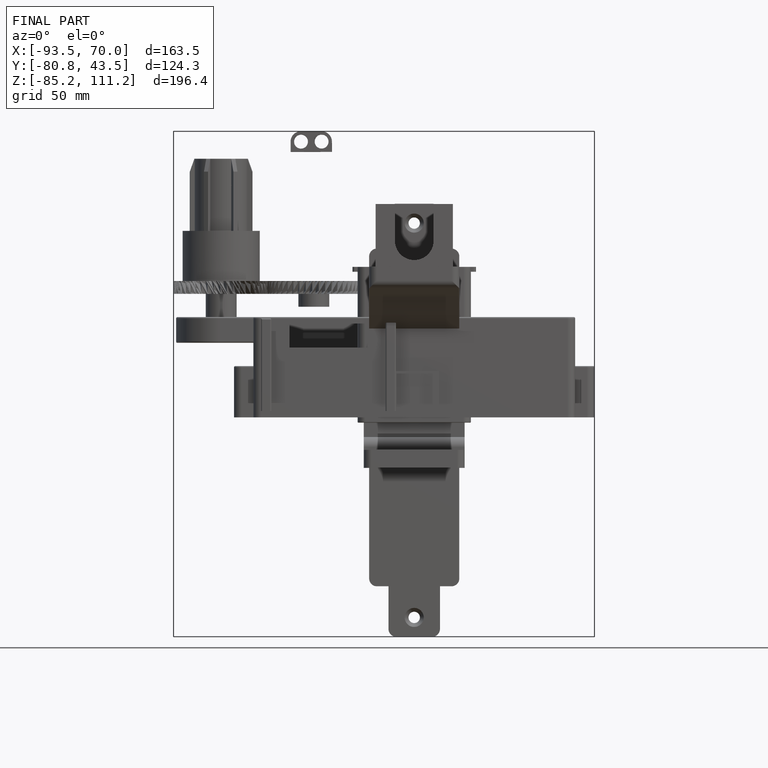
[diagram: finished part — front view with bounding-box wireframe]
